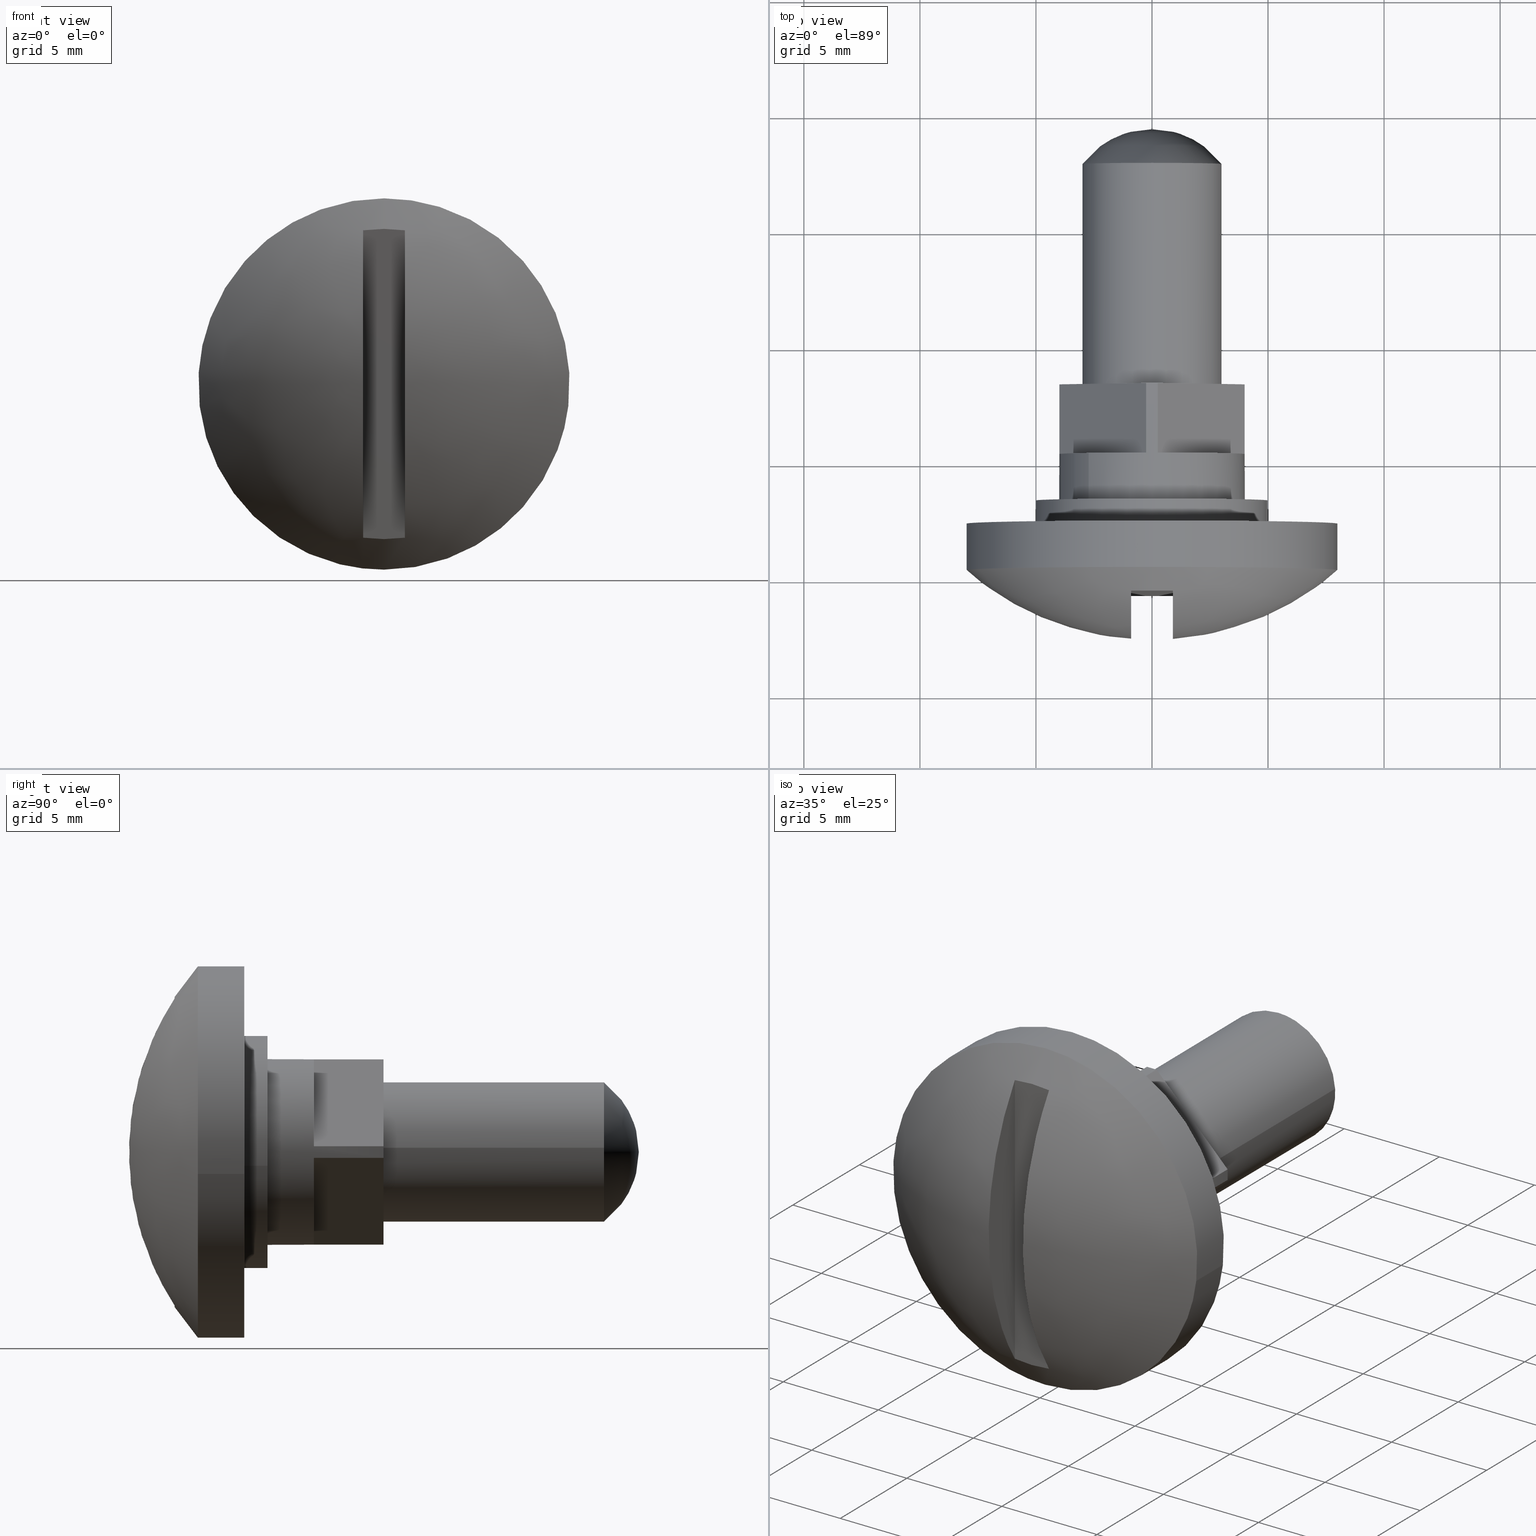
[diagram: canonical four-view strip — front | top / right | iso, engineering-drawing reading convention]
A machine part, canonical four-view strip (front | top / right | iso — engineering-drawing reading convention). The complete STEP part file that produces these views, byte-faithful:
ISO-10303-21;
HEADER;
/****************************************************************
 * Generated by software with PDE/Lib inside                    *
 * PDElib Version 4.4.1-0003, patched  Thursday August 19 11:58 *
 * International Technegroup Inc. (www.iti-oh.com)              *
 ****************************************************************/
FILE_DESCRIPTION((''),'2;1');
FILE_NAME('','2005-07-15T17:28:16',(''),(''),'','CADfix','');
FILE_SCHEMA(('AUTOMOTIVE_DESIGN'));
ENDSEC;
DATA;
#5=APPLICATION_CONTEXT('automotive design');
#6=APPLICATION_PROTOCOL_DEFINITION('Draft International Standard','automotive_design',1998,#5);
#7=PRODUCT_CONTEXT('None',#5,'mechanical');
#8=PRODUCT('knob','','None',(#7));
#9=PRODUCT_RELATED_PRODUCT_CATEGORY('part','description',(#8));
#10=PRODUCT_DEFINITION_FORMATION('None','None',#8);
#11=PRODUCT_DEFINITION_CONTEXT('part definition',#5,'design');
#12=PRODUCT_DEFINITION('None','None',#10,#11);
#18=(NAMED_UNIT(*)PLANE_ANGLE_UNIT()SI_UNIT($,.RADIAN.));
#19=DIMENSIONAL_EXPONENTS(0.0,0.0,0.0,0.0,0.0,0.0,0.0);
#20=PLANE_ANGLE_MEASURE_WITH_UNIT(PLANE_ANGLE_MEASURE(0.017453292500000),#18);
#24=(CONVERSION_BASED_UNIT('DEGREE',#20)NAMED_UNIT(#19)PLANE_ANGLE_UNIT());
#28=(NAMED_UNIT(*)SI_UNIT($,.STERADIAN.)SOLID_ANGLE_UNIT());
#32=(LENGTH_UNIT()NAMED_UNIT(*)SI_UNIT(.MILLI.,.METRE.));
#34=UNCERTAINTY_MEASURE_WITH_UNIT(LENGTH_MEASURE(0.001000000000000),#32,'DISTANCE_ACCURACY_VALUE','');
#36=(GEOMETRIC_REPRESENTATION_CONTEXT(3)GLOBAL_UNCERTAINTY_ASSIGNED_CONTEXT((#34))GLOBAL_UNIT_ASSIGNED_CONTEXT((#24,#28,#32))REPRESENTATION_CONTEXT('None','None'));
#37=AXIS2_PLACEMENT_3D('',#38,#39,#40);
#38=CARTESIAN_POINT('',(0.0,0.0,0.0));
#39=DIRECTION('',(0.0,0.0,1.0));
#40=DIRECTION('',(1.0,0.0,0.0));
#41=ADVANCED_BREP_SHAPE_REPRESENTATION('',(#37,#1353),#36);
#42=PRODUCT_DEFINITION_SHAPE('','',#12);
#43=SHAPE_DEFINITION_REPRESENTATION(#42,#41);
#44=CARTESIAN_POINT('',(-2.994404615528195,13.137516400000001,-0.183142017307440));
#45=CARTESIAN_POINT('',(-2.811262598220756,13.137516400000003,-3.177546632835635));
#46=CARTESIAN_POINT('',(0.183142017307439,13.137516400000001,-2.994404615528196));
#47=CARTESIAN_POINT('',(3.177546632835635,13.137516400000003,-2.811262598220757));
#48=CARTESIAN_POINT('',(2.994404615528195,13.137516400000001,0.183142017307438));
#49=CARTESIAN_POINT('',(-2.994404615528195,3.156562089999999,-0.183142017307440));
#50=CARTESIAN_POINT('',(-2.811262598220756,3.156562090000000,-3.177546632835635));
#51=CARTESIAN_POINT('',(0.183142017307439,3.156562090000000,-2.994404615528196));
#52=CARTESIAN_POINT('',(3.177546632835635,3.156562090000000,-2.811262598220757));
#53=CARTESIAN_POINT('',(2.994404615528195,3.156562090000000,0.183142017307438));
#61=(BOUNDED_SURFACE()B_SPLINE_SURFACE(2,1,((#44,#49),(#45,#50),(#46,#51),(#47,#52),(#48,#53)),.UNSPECIFIED.,.F.,.F.,.U.)B_SPLINE_SURFACE_WITH_KNOTS((3,2,3),(2,2),(0.0,4.970562748477139,9.941125496954278),(0.0,9.980954310000005),.UNSPECIFIED.)GEOMETRIC_REPRESENTATION_ITEM()RATIONAL_B_SPLINE_SURFACE(((1.0,1.0),(0.707106781186548,0.707106781186548),(1.0,1.0),(0.707106781186548,0.707106781186548),(1.0,1.0)))REPRESENTATION_ITEM('')SURFACE());
#62=CARTESIAN_POINT('',(-2.994404663263454,12.900015999999720,-0.183141236824116));
#63=VERTEX_POINT('',#62);
#64=CARTESIAN_POINT('',(0.0,12.900016000000001,-3.000000000000001));
#65=VERTEX_POINT('',#64);
#66=CARTESIAN_POINT('',(-2.994404663263454,12.900015999999717,-0.183141236824115));
#67=CARTESIAN_POINT('',(-2.822123075059931,12.900015999999999,-3.000000000000001));
#68=CARTESIAN_POINT('',(0.0,12.900016000000001,-3.000000000000001));
#76=(BOUNDED_CURVE()B_SPLINE_CURVE(2,(#66,#67,#68),.UNSPECIFIED.,.F.,.U.)B_SPLINE_CURVE_WITH_KNOTS((3,3),(0.760666740292436,1.0),.UNSPECIFIED.)CURVE()GEOMETRIC_REPRESENTATION_ITEM()RATIONAL_B_SPLINE_CURVE((0.976072679199428,0.719603644780542,1.0))REPRESENTATION_ITEM(''));
#77=EDGE_CURVE('',#63,#65,#76,.T.);
#78=ORIENTED_EDGE('',*,*,#77,.T.);
#79=CARTESIAN_POINT('',(2.994404663590363,12.900015999999971,0.183141231479039));
#80=VERTEX_POINT('',#79);
#81=CARTESIAN_POINT('',(0.0,12.900016000000001,-3.000000000000001));
#82=CARTESIAN_POINT('',(3.0,12.900016000000001,-3.0));
#83=CARTESIAN_POINT('',(3.0,12.900016000000001,-7.715016E-016));
#84=CARTESIAN_POINT('',(3.000000000000000,12.900016000000006,0.091655696166776));
#85=CARTESIAN_POINT('',(2.994404663590363,12.900015999999978,0.183141231479039));
#93=(BOUNDED_CURVE()B_SPLINE_CURVE(2,(#81,#82,#83,#84,#85),.UNSPECIFIED.,.F.,.U.)B_SPLINE_CURVE_WITH_KNOTS((3,2,3),(0.0,0.250000000000000,0.260666739676436),.UNSPECIFIED.)CURVE()GEOMETRIC_REPRESENTATION_ITEM()RATIONAL_B_SPLINE_CURVE((1.0,0.707106781186548,1.0,0.987503137127694,0.976072680519636))REPRESENTATION_ITEM(''));
#94=EDGE_CURVE('',#65,#80,#93,.T.);
#95=ORIENTED_EDGE('',*,*,#94,.T.);
#96=CARTESIAN_POINT('',(2.994404490119333,3.400000000000000,0.183142009639456));
#97=VERTEX_POINT('',#96);
#98=CARTESIAN_POINT('',(2.994404663590363,12.900015999999971,0.183141231479039));
#99=CARTESIAN_POINT('',(2.994404490119333,3.400000000000000,0.183142009639456));
#100=QUASI_UNIFORM_CURVE('',1,(#98,#99),.UNSPECIFIED.,.F.,.U.);
#101=EDGE_CURVE('',#80,#97,#100,.T.);
#102=ORIENTED_EDGE('',*,*,#101,.T.);
#103=CARTESIAN_POINT('',(2.121322265686895,3.400000000000000,-2.121326234312615));
#104=VERTEX_POINT('',#103);
#105=CARTESIAN_POINT('',(2.994404490119333,3.400000000000000,0.183142009639456));
#106=CARTESIAN_POINT('',(3.000000118683778,3.400000000000000,0.091654769193778));
#107=CARTESIAN_POINT('',(3.000000281437091,3.400000000000000,-0.000003424561802));
#108=CARTESIAN_POINT('',(3.000002487941428,3.400000000000000,-1.242646037817551));
#109=CARTESIAN_POINT('',(2.121322265686895,3.400000000000000,-2.121326234312615));
#117=(BOUNDED_CURVE()B_SPLINE_CURVE(2,(#105,#106,#107,#108,#109),.UNSPECIFIED.,.F.,.U.)B_SPLINE_CURVE_WITH_KNOTS((3,2,3),(0.460322121752614,0.500000000000000,1.0),.UNSPECIFIED.)CURVE()GEOMETRIC_REPRESENTATION_ITEM()RATIONAL_B_SPLINE_CURVE((0.988877489748887,0.993959387499798,1.0,0.923879340743228,1.0))REPRESENTATION_ITEM(''));
#118=EDGE_CURVE('',#97,#104,#117,.T.);
#119=ORIENTED_EDGE('',*,*,#118,.T.);
#120=CARTESIAN_POINT('',(-2.121323301251275,3.400000000000000,-2.121318198730010));
#121=VERTEX_POINT('',#120);
#122=CARTESIAN_POINT('',(2.121322265686895,3.400000000000000,-2.121326234312615));
#123=CARTESIAN_POINT('',(1.242640728038254,3.400000000000000,-3.000004510004441));
#124=CARTESIAN_POINT('',(-0.000001457129662,3.400000000000000,-3.000002156436656));
#125=CARTESIAN_POINT('',(-1.242643642297578,3.400000000000000,-2.999999802868871));
#126=CARTESIAN_POINT('',(-2.121323301251275,3.400000000000000,-2.121318198730010));
#134=(BOUNDED_CURVE()B_SPLINE_CURVE(2,(#122,#123,#124,#125,#126),.UNSPECIFIED.,.F.,.U.)B_SPLINE_CURVE_WITH_KNOTS((3,2,3),(0.0,0.500000000000000,1.0),.UNSPECIFIED.)CURVE()GEOMETRIC_REPRESENTATION_ITEM()RATIONAL_B_SPLINE_CURVE((1.0,0.923879506941981,1.0,0.923879506941981,1.0))REPRESENTATION_ITEM(''));
#135=EDGE_CURVE('',#104,#121,#134,.T.);
#136=ORIENTED_EDGE('',*,*,#135,.T.);
#137=CARTESIAN_POINT('',(-2.994403242990881,3.400000000000000,-0.183142378471797));
#138=VERTEX_POINT('',#137);
#139=CARTESIAN_POINT('',(-2.121323301251275,3.400000000000000,-2.121318198730010));
#140=CARTESIAN_POINT('',(-2.925019260653875,3.400000000000000,-1.317620866015910));
#141=CARTESIAN_POINT('',(-2.994403242990881,3.400000000000001,-0.183142378471797));
#149=(BOUNDED_CURVE()B_SPLINE_CURVE(2,(#139,#140,#141),.UNSPECIFIED.,.F.,.U.)B_SPLINE_CURVE_WITH_KNOTS((3,3),(0.0,0.463120798203553),.UNSPECIFIED.)CURVE()GEOMETRIC_REPRESENTATION_ITEM()RATIONAL_B_SPLINE_CURVE((1.0,0.864355430681329,0.854350503792338))REPRESENTATION_ITEM(''));
#150=EDGE_CURVE('',#121,#138,#149,.T.);
#151=ORIENTED_EDGE('',*,*,#150,.T.);
#152=CARTESIAN_POINT('',(-2.994404663263454,12.900015999999720,-0.183141236824116));
#153=CARTESIAN_POINT('',(-2.994403242990881,3.400000000000000,-0.183142378471797));
#154=QUASI_UNIFORM_CURVE('',1,(#152,#153),.UNSPECIFIED.,.F.,.U.);
#155=EDGE_CURVE('',#63,#138,#154,.T.);
#156=ORIENTED_EDGE('',*,*,#155,.F.);
#157=EDGE_LOOP('',(#78,#95,#102,#119,#136,#151,#156));
#158=FACE_OUTER_BOUND('',#157,.T.);
#159=ADVANCED_FACE('',(#158),#61,.T.);
#160=CARTESIAN_POINT('',(2.994404615528195,13.137516400000001,0.183142017307438));
#161=CARTESIAN_POINT('',(2.811262598220756,13.137516400000003,3.177546632835633));
#162=CARTESIAN_POINT('',(-0.183142017307439,13.137516400000001,2.994404615528194));
#163=CARTESIAN_POINT('',(-3.177546632835635,13.137516400000003,2.811262598220754));
#164=CARTESIAN_POINT('',(-2.994404615528195,13.137516400000001,-0.183142017307440));
#165=CARTESIAN_POINT('',(2.994404615528195,3.156562090000000,0.183142017307438));
#166=CARTESIAN_POINT('',(2.811262598220756,3.156562090000000,3.177546632835633));
#167=CARTESIAN_POINT('',(-0.183142017307439,3.156562090000000,2.994404615528194));
#168=CARTESIAN_POINT('',(-3.177546632835635,3.156562090000000,2.811262598220754));
#169=CARTESIAN_POINT('',(-2.994404615528195,3.156562089999999,-0.183142017307440));
#177=(BOUNDED_SURFACE()B_SPLINE_SURFACE(2,1,((#160,#165),(#161,#166),(#162,#167),(#163,#168),(#164,#169)),.UNSPECIFIED.,.F.,.F.,.U.)B_SPLINE_SURFACE_WITH_KNOTS((3,2,3),(2,2),(0.0,4.970562748477139,9.941125496954278),(0.0,9.980954310000005),.UNSPECIFIED.)GEOMETRIC_REPRESENTATION_ITEM()RATIONAL_B_SPLINE_SURFACE(((1.0,1.0),(0.707106781186548,0.707106781186548),(1.0,1.0),(0.707106781186548,0.707106781186548),(1.0,1.0)))REPRESENTATION_ITEM('')SURFACE());
#178=CARTESIAN_POINT('',(0.0,12.900016000000001,2.999999999999999));
#179=VERTEX_POINT('',#178);
#180=CARTESIAN_POINT('',(0.0,12.900016000000001,2.999999999999999));
#181=CARTESIAN_POINT('',(-3.0,12.900016000000001,2.999999999999999));
#182=CARTESIAN_POINT('',(-3.0,12.900016000000001,-7.715016E-016));
#183=CARTESIAN_POINT('',(-3.000000000000000,12.900016000000004,-0.091655701526847));
#184=CARTESIAN_POINT('',(-2.994404663263455,12.900015999999715,-0.183141236824115));
#192=(BOUNDED_CURVE()B_SPLINE_CURVE(2,(#180,#181,#182,#183,#184),.UNSPECIFIED.,.F.,.U.)B_SPLINE_CURVE_WITH_KNOTS((3,2,3),(0.500000000000000,0.750000000000000,0.760666740292437),.UNSPECIFIED.)CURVE()GEOMETRIC_REPRESENTATION_ITEM()RATIONAL_B_SPLINE_CURVE((1.0,0.707106781186548,1.0,0.987503136406004,0.976072679199426))REPRESENTATION_ITEM(''));
#193=EDGE_CURVE('',#179,#63,#192,.T.);
#194=ORIENTED_EDGE('',*,*,#193,.T.);
#195=ORIENTED_EDGE('',*,*,#155,.T.);
#196=CARTESIAN_POINT('',(-2.121315767779515,3.400000000000000,2.121311232219955));
#197=VERTEX_POINT('',#196);
#198=CARTESIAN_POINT('',(-2.994403242990881,3.400000000000001,-0.183142378471797));
#199=CARTESIAN_POINT('',(-3.076897983283088,3.400000000000000,1.165730687957038));
#200=CARTESIAN_POINT('',(-2.121315767779515,3.400000000000000,2.121311232219955));
#208=(BOUNDED_CURVE()B_SPLINE_CURVE(2,(#198,#199,#200),.UNSPECIFIED.,.F.,.U.)B_SPLINE_CURVE_WITH_KNOTS((3,3),(0.463120798203553,1.0),.UNSPECIFIED.)CURVE()GEOMETRIC_REPRESENTATION_ITEM()RATIONAL_B_SPLINE_CURVE((0.854350503792338,0.842752153679302,1.0))REPRESENTATION_ITEM(''));
#209=EDGE_CURVE('',#138,#197,#208,.T.);
#210=ORIENTED_EDGE('',*,*,#209,.T.);
#211=CARTESIAN_POINT('',(2.121314732212985,3.400000000000000,2.121319267770345));
#212=VERTEX_POINT('',#211);
#213=CARTESIAN_POINT('',(-2.121315767779515,3.400000000000000,2.121311232219955));
#214=CARTESIAN_POINT('',(-1.242639160509952,3.400000000000000,2.999992552879207));
#215=CARTESIAN_POINT('',(-0.000001457130434,3.400000000000000,2.999994906437426));
#216=CARTESIAN_POINT('',(1.242636246249084,3.400000000000000,2.999997259995644));
#217=CARTESIAN_POINT('',(2.121314732212985,3.400000000000000,2.121319267770345));
#225=(BOUNDED_CURVE()B_SPLINE_CURVE(2,(#213,#214,#215,#216,#217),.UNSPECIFIED.,.F.,.U.)B_SPLINE_CURVE_WITH_KNOTS((3,2,3),(0.0,0.500000000000000,1.0),.UNSPECIFIED.)CURVE()GEOMETRIC_REPRESENTATION_ITEM()RATIONAL_B_SPLINE_CURVE((1.0,0.923879532511069,1.0,0.923879532511069,1.0))REPRESENTATION_ITEM(''));
#226=EDGE_CURVE('',#197,#212,#225,.T.);
#227=ORIENTED_EDGE('',*,*,#226,.T.);
#228=CARTESIAN_POINT('',(2.121314732212985,3.400000000000000,2.121319267770345));
#229=CARTESIAN_POINT('',(2.925014651749199,3.400000000000000,1.317622333370854));
#230=CARTESIAN_POINT('',(2.994404490119333,3.400000000000000,0.183142009639456));
#238=(BOUNDED_CURVE()B_SPLINE_CURVE(2,(#228,#229,#230),.UNSPECIFIED.,.F.,.U.)B_SPLINE_CURVE_WITH_KNOTS((3,3),(0.0,0.460322121752614),.UNSPECIFIED.)CURVE()GEOMETRIC_REPRESENTATION_ITEM()RATIONAL_B_SPLINE_CURVE((1.0,0.929919953243430,0.988877489748887))REPRESENTATION_ITEM(''));
#239=EDGE_CURVE('',#212,#97,#238,.T.);
#240=ORIENTED_EDGE('',*,*,#239,.T.);
#241=ORIENTED_EDGE('',*,*,#101,.F.);
#242=CARTESIAN_POINT('',(2.994404663590363,12.900015999999978,0.183141231479039));
#243=CARTESIAN_POINT('',(2.822123085153854,12.900015999999999,2.999999999999998));
#244=CARTESIAN_POINT('',(0.0,12.900016000000001,2.999999999999999));
#252=(BOUNDED_CURVE()B_SPLINE_CURVE(2,(#242,#243,#244),.UNSPECIFIED.,.F.,.U.)B_SPLINE_CURVE_WITH_KNOTS((3,3),(0.260666739676436,0.500000000000000),.UNSPECIFIED.)CURVE()GEOMETRIC_REPRESENTATION_ITEM()RATIONAL_B_SPLINE_CURVE((0.976072680519636,0.719603644058854,1.0))REPRESENTATION_ITEM(''));
#253=EDGE_CURVE('',#80,#179,#252,.T.);
#254=ORIENTED_EDGE('',*,*,#253,.T.);
#255=EDGE_LOOP('',(#194,#195,#210,#227,#240,#241,#254));
#256=FACE_OUTER_BOUND('',#255,.T.);
#257=ADVANCED_FACE('',(#256),#177,.T.);
#258=CARTESIAN_POINT('',(7.944076210909330,-2.549990697272630,-0.944273877254068));
#259=CARTESIAN_POINT('',(7.971100923588844,-2.549990697272630,-0.716917829103822));
#260=CARTESIAN_POINT('',(7.985078387374934,-2.549990697272629,-0.488388316278857));
#261=CARTESIAN_POINT('',(8.473466703653790,-2.549990697272629,7.496690071096077));
#262=CARTESIAN_POINT('',(0.488388316278856,-2.549990697272629,7.985078387374933));
#263=CARTESIAN_POINT('',(-7.496690071096078,-2.549990697272629,8.473466703653788));
#264=CARTESIAN_POINT('',(-7.985078387374934,-2.549990697272629,0.488388316278855));
#265=CARTESIAN_POINT('',(7.944076210909330,-4.651253419386369,-0.944273877254068));
#266=CARTESIAN_POINT('',(7.971100923588844,-4.651253419386368,-0.716917829103822));
#267=CARTESIAN_POINT('',(7.985078387374934,-4.651253419386368,-0.488388316278857));
#268=CARTESIAN_POINT('',(8.473466703653790,-4.651253419386369,7.496690071096077));
#269=CARTESIAN_POINT('',(0.488388316278856,-4.651253419386368,7.985078387374933));
#270=CARTESIAN_POINT('',(-7.496690071096078,-4.651253419386369,8.473466703653788));
#271=CARTESIAN_POINT('',(-7.985078387374934,-4.651253419386368,0.488388316278855));
#279=(BOUNDED_SURFACE()B_SPLINE_SURFACE(2,1,((#258,#265),(#259,#266),(#260,#267),(#261,#268),(#262,#269),(#263,#270),(#264,#271)),.UNSPECIFIED.,.F.,.F.,.U.)B_SPLINE_SURFACE_WITH_KNOTS((3,2,2,3),(2,2),(0.0,0.530193359837562,13.785027355776601,27.039861351715640),(0.0,2.101262722113740),.UNSPECIFIED.)GEOMETRIC_REPRESENTATION_ITEM()RATIONAL_B_SPLINE_SURFACE(((0.977505800795127,0.977505800795127),(0.988284271247462,0.988284271247462),(1.0,1.0),(0.707106781186548,0.707106781186548),(1.0,1.0),(0.707106781186548,0.707106781186548),(1.0,1.0)))REPRESENTATION_ITEM('')SURFACE());
#280=CARTESIAN_POINT('',(7.944076345041307,-2.599990999999911,-0.944272748814582));
#281=VERTEX_POINT('',#280);
#282=CARTESIAN_POINT('',(0.0,-2.599990999999905,8.0));
#283=VERTEX_POINT('',#282);
#284=CARTESIAN_POINT('',(7.944076345041307,-2.599990999999910,-0.944272748814582));
#285=CARTESIAN_POINT('',(7.999999999999999,-2.599990999999905,-0.473792387030691));
#286=CARTESIAN_POINT('',(8.0,-2.599990999999905,-7.715016E-016));
#287=CARTESIAN_POINT('',(8.0,-2.599990999999905,8.0));
#288=CARTESIAN_POINT('',(0.0,-2.599990999999905,8.0));
#296=(BOUNDED_CURVE()B_SPLINE_CURVE(2,(#284,#285,#286,#287,#288),.UNSPECIFIED.,.F.,.U.)B_SPLINE_CURVE_WITH_KNOTS((3,2,3),(0.229562497522204,0.250000000000000,0.500000000000000),.UNSPECIFIED.)CURVE()GEOMETRIC_REPRESENTATION_ITEM()RATIONAL_B_SPLINE_CURVE((0.956026801241731,0.976055976459082,1.0,0.707106781186548,1.0))REPRESENTATION_ITEM(''));
#297=EDGE_CURVE('',#281,#283,#296,.T.);
#298=ORIENTED_EDGE('',*,*,#297,.T.);
#299=CARTESIAN_POINT('',(-7.985078491738044,-2.599990999999895,0.488386609951132));
#300=VERTEX_POINT('',#299);
#301=CARTESIAN_POINT('',(0.0,-2.599990999999905,8.0));
#302=CARTESIAN_POINT('',(-7.525650146403201,-2.599990999999905,8.0));
#303=CARTESIAN_POINT('',(-7.985078491738044,-2.599990999999895,0.488386609951132));
#311=(BOUNDED_CURVE()B_SPLINE_CURVE(2,(#301,#302,#303),.UNSPECIFIED.,.F.,.U.)B_SPLINE_CURVE_WITH_KNOTS((3,3),(0.500000000000000,0.739332999113413),.UNSPECIFIED.)CURVE()GEOMETRIC_REPRESENTATION_ITEM()RATIONAL_B_SPLINE_CURVE((1.0,0.719603950085581,0.976072120695740))REPRESENTATION_ITEM(''));
#312=EDGE_CURVE('',#283,#300,#311,.T.);
#313=ORIENTED_EDGE('',*,*,#312,.T.);
#314=CARTESIAN_POINT('',(-7.985078490479376,-4.600003109090910,0.488386630530298));
#315=VERTEX_POINT('',#314);
#316=CARTESIAN_POINT('',(-7.985078491738044,-2.599990999999895,0.488386609951132));
#317=CARTESIAN_POINT('',(-7.985078490479376,-4.600003109090910,0.488386630530298));
#318=QUASI_UNIFORM_CURVE('',1,(#316,#317),.UNSPECIFIED.,.F.,.U.);
#319=EDGE_CURVE('',#300,#315,#318,.T.);
#320=ORIENTED_EDGE('',*,*,#319,.T.);
#321=CARTESIAN_POINT('',(0.0,-4.600003109090910,8.0));
#322=VERTEX_POINT('',#321);
#323=CARTESIAN_POINT('',(0.0,-4.600003109090910,8.0));
#324=CARTESIAN_POINT('',(-7.525650126971833,-4.600003109090910,8.0));
#325=CARTESIAN_POINT('',(-7.985078490479377,-4.600003109090910,0.488386630530298));
#333=(BOUNDED_CURVE()B_SPLINE_CURVE(2,(#323,#324,#325),.UNSPECIFIED.,.F.,.U.)B_SPLINE_CURVE_WITH_KNOTS((3,3),(0.500000000000000,0.739332998668725),.UNSPECIFIED.)CURVE()GEOMETRIC_REPRESENTATION_ITEM()RATIONAL_B_SPLINE_CURVE((1.0,0.719603950606565,0.976072119742688))REPRESENTATION_ITEM(''));
#334=EDGE_CURVE('',#322,#315,#333,.T.);
#335=ORIENTED_EDGE('',*,*,#334,.F.);
#336=CARTESIAN_POINT('',(7.944076343426870,-4.600003109090911,-0.944272762396703));
#337=VERTEX_POINT('',#336);
#338=CARTESIAN_POINT('',(7.944076343426870,-4.600003109090911,-0.944272762396703));
#339=CARTESIAN_POINT('',(8.0,-4.600003109090910,-0.473792393893546));
#340=CARTESIAN_POINT('',(8.0,-4.600003109090910,-7.715016E-016));
#341=CARTESIAN_POINT('',(8.0,-4.600003109090911,8.0));
#342=CARTESIAN_POINT('',(0.0,-4.600003109090910,8.0));
#350=(BOUNDED_CURVE()B_SPLINE_CURVE(2,(#338,#339,#340,#341,#342),.UNSPECIFIED.,.F.,.U.)B_SPLINE_CURVE_WITH_KNOTS((3,2,3),(0.229562497233257,0.250000000000000,0.500000000000000),.UNSPECIFIED.)CURVE()GEOMETRIC_REPRESENTATION_ITEM()RATIONAL_B_SPLINE_CURVE((0.956026800675382,0.976055976120559,1.0,0.707106781186548,1.0))REPRESENTATION_ITEM(''));
#351=EDGE_CURVE('',#337,#322,#350,.T.);
#352=ORIENTED_EDGE('',*,*,#351,.F.);
#353=CARTESIAN_POINT('',(7.944076345041307,-2.599990999999911,-0.944272748814582));
#354=CARTESIAN_POINT('',(7.944076343426870,-4.600003109090911,-0.944272762396703));
#355=QUASI_UNIFORM_CURVE('',1,(#353,#354),.UNSPECIFIED.,.F.,.U.);
#356=EDGE_CURVE('',#281,#337,#355,.T.);
#357=ORIENTED_EDGE('',*,*,#356,.F.);
#358=EDGE_LOOP('',(#298,#313,#320,#335,#352,#357));
#359=FACE_OUTER_BOUND('',#358,.T.);
#360=ADVANCED_FACE('',(#359),#279,.T.);
#361=CARTESIAN_POINT('',(-7.985078387374934,-2.549990697272629,0.488388316278855));
#362=CARTESIAN_POINT('',(-8.473466703653790,-2.549990697272629,-7.496690071096078));
#363=CARTESIAN_POINT('',(-0.488388316278856,-2.549990697272629,-7.985078387374935));
#364=CARTESIAN_POINT('',(7.052347926716008,-2.549990697272630,-8.446289573860220));
#365=CARTESIAN_POINT('',(7.944076210909330,-2.549990697272630,-0.944273877254068));
#366=CARTESIAN_POINT('',(-7.985078387374934,-4.651253419386368,0.488388316278855));
#367=CARTESIAN_POINT('',(-8.473466703653790,-4.651253419386369,-7.496690071096078));
#368=CARTESIAN_POINT('',(-0.488388316278856,-4.651253419386368,-7.985078387374935));
#369=CARTESIAN_POINT('',(7.052347926716008,-4.651253419386368,-8.446289573860220));
#370=CARTESIAN_POINT('',(7.944076210909330,-4.651253419386369,-0.944273877254068));
#378=(BOUNDED_SURFACE()B_SPLINE_SURFACE(2,1,((#361,#366),(#362,#367),(#363,#368),(#364,#369),(#365,#370)),.UNSPECIFIED.,.F.,.F.,.U.)B_SPLINE_SURFACE_WITH_KNOTS((3,2,3),(2,2),(0.0,13.254833995939039,25.979474632040510),(0.0,2.101262722113740),.UNSPECIFIED.)GEOMETRIC_REPRESENTATION_ITEM()RATIONAL_B_SPLINE_SURFACE(((1.0,1.0),(0.707106781186548,0.707106781186548),(1.0,1.0),(0.718822509939086,0.718822509939086),(0.977505800795127,0.977505800795127)))REPRESENTATION_ITEM('')SURFACE());
#379=CARTESIAN_POINT('',(0.0,-2.599990999999905,-8.0));
#380=VERTEX_POINT('',#379);
#381=CARTESIAN_POINT('',(0.0,-2.599990999999905,-8.0));
#382=CARTESIAN_POINT('',(7.105397224022927,-2.599990999999906,-8.0));
#383=CARTESIAN_POINT('',(7.944076345041307,-2.599990999999910,-0.944272748814582));
#391=(BOUNDED_CURVE()B_SPLINE_CURVE(2,(#381,#382,#383),.UNSPECIFIED.,.F.,.U.)B_SPLINE_CURVE_WITH_KNOTS((3,3),(0.0,0.229562497522204),.UNSPECIFIED.)CURVE()GEOMETRIC_REPRESENTATION_ITEM()RATIONAL_B_SPLINE_CURVE((1.0,0.731050804727466,0.956026801241731))REPRESENTATION_ITEM(''));
#392=EDGE_CURVE('',#380,#281,#391,.T.);
#393=ORIENTED_EDGE('',*,*,#392,.T.);
#394=ORIENTED_EDGE('',*,*,#356,.T.);
#395=CARTESIAN_POINT('',(0.0,-4.600003109090910,-8.0));
#396=VERTEX_POINT('',#395);
#397=CARTESIAN_POINT('',(0.0,-4.600003109090910,-8.0));
#398=CARTESIAN_POINT('',(7.105397211789190,-4.600003109090910,-8.0));
#399=CARTESIAN_POINT('',(7.944076343426870,-4.600003109090911,-0.944272762396703));
#407=(BOUNDED_CURVE()B_SPLINE_CURVE(2,(#397,#398,#399),.UNSPECIFIED.,.F.,.U.)B_SPLINE_CURVE_WITH_KNOTS((3,3),(0.0,0.229562497233257),.UNSPECIFIED.)CURVE()GEOMETRIC_REPRESENTATION_ITEM()RATIONAL_B_SPLINE_CURVE((1.0,0.731050805065989,0.956026800675382))REPRESENTATION_ITEM(''));
#408=EDGE_CURVE('',#396,#337,#407,.T.);
#409=ORIENTED_EDGE('',*,*,#408,.F.);
#410=CARTESIAN_POINT('',(-7.985078490479377,-4.600003109090910,0.488386630530298));
#411=CARTESIAN_POINT('',(-8.0,-4.600003109090910,0.244421261151109));
#412=CARTESIAN_POINT('',(-8.0,-4.600003109090910,-7.715016E-016));
#413=CARTESIAN_POINT('',(-8.0,-4.600003109090911,-8.0));
#414=CARTESIAN_POINT('',(0.0,-4.600003109090910,-8.0));
#422=(BOUNDED_CURVE()B_SPLINE_CURVE(2,(#410,#411,#412,#413,#414),.UNSPECIFIED.,.F.,.U.)B_SPLINE_CURVE_WITH_KNOTS((3,2,3),(0.739332998668725,0.750000000000000,1.0),.UNSPECIFIED.)CURVE()GEOMETRIC_REPRESENTATION_ITEM()RATIONAL_B_SPLINE_CURVE((0.976072119742688,0.987502830579982,1.0,0.707106781186548,1.0))REPRESENTATION_ITEM(''));
#423=EDGE_CURVE('',#315,#396,#422,.T.);
#424=ORIENTED_EDGE('',*,*,#423,.F.);
#425=ORIENTED_EDGE('',*,*,#319,.F.);
#426=CARTESIAN_POINT('',(-7.985078491738044,-2.599990999999895,0.488386609951132));
#427=CARTESIAN_POINT('',(-8.0,-2.599990999999905,0.244421250832675));
#428=CARTESIAN_POINT('',(-8.0,-2.599990999999905,-7.715016E-016));
#429=CARTESIAN_POINT('',(-8.0,-2.599990999999905,-8.0));
#430=CARTESIAN_POINT('',(0.0,-2.599990999999905,-8.0));
#438=(BOUNDED_CURVE()B_SPLINE_CURVE(2,(#426,#427,#428,#429,#430),.UNSPECIFIED.,.F.,.U.)B_SPLINE_CURVE_WITH_KNOTS((3,2,3),(0.739332999113413,0.750000000000000,1.0),.UNSPECIFIED.)CURVE()GEOMETRIC_REPRESENTATION_ITEM()RATIONAL_B_SPLINE_CURVE((0.976072120695740,0.987502831100967,1.0,0.707106781186548,1.0))REPRESENTATION_ITEM(''));
#439=EDGE_CURVE('',#300,#380,#438,.T.);
#440=ORIENTED_EDGE('',*,*,#439,.T.);
#441=EDGE_LOOP('',(#393,#394,#409,#424,#425,#440));
#442=FACE_OUTER_BOUND('',#441,.T.);
#443=ADVANCED_FACE('',(#442),#378,.T.);
#444=CARTESIAN_POINT('',(4.965047631818332,-1.574990999999905,-0.590171173283793));
#445=CARTESIAN_POINT('',(4.981938077243028,-1.574990999999905,-0.448073643189889));
#446=CARTESIAN_POINT('',(4.990673992109334,-1.574990999999905,-0.305242697674286));
#447=CARTESIAN_POINT('',(5.295916689783620,-1.574990999999905,4.685431294435048));
#448=CARTESIAN_POINT('',(0.305242697674285,-1.574990999999905,4.990673992109333));
#449=CARTESIAN_POINT('',(-4.685431294435048,-1.574990999999905,5.295916689783618));
#450=CARTESIAN_POINT('',(-4.990673992109334,-1.574990999999905,0.305242697674284));
#451=CARTESIAN_POINT('',(4.965047631818332,-2.625615999999905,-0.590171173283793));
#452=CARTESIAN_POINT('',(4.981938077243028,-2.625615999999905,-0.448073643189889));
#453=CARTESIAN_POINT('',(4.990673992109334,-2.625615999999905,-0.305242697674286));
#454=CARTESIAN_POINT('',(5.295916689783620,-2.625615999999905,4.685431294435048));
#455=CARTESIAN_POINT('',(0.305242697674285,-2.625615999999905,4.990673992109333));
#456=CARTESIAN_POINT('',(-4.685431294435048,-2.625615999999905,5.295916689783618));
#457=CARTESIAN_POINT('',(-4.990673992109334,-2.625615999999905,0.305242697674284));
#465=(BOUNDED_SURFACE()B_SPLINE_SURFACE(2,1,((#444,#451),(#445,#452),(#446,#453),(#447,#454),(#448,#455),(#449,#456),(#450,#457)),.UNSPECIFIED.,.F.,.F.,.U.)B_SPLINE_SURFACE_WITH_KNOTS((3,2,2,3),(2,2),(0.0,0.331370849898476,8.615642097360375,16.899913344822270),(0.0,1.0),.UNSPECIFIED.)GEOMETRIC_REPRESENTATION_ITEM()RATIONAL_B_SPLINE_SURFACE(((0.977505800795127,0.977505800795127),(0.988284271247462,0.988284271247462),(1.0,1.0),(0.707106781186548,0.707106781186548),(1.0,1.0),(0.707106781186548,0.707106781186548),(1.0,1.0)))REPRESENTATION_ITEM('')SURFACE());
#466=CARTESIAN_POINT('',(4.965047645764781,-2.599990999999905,-0.590171055953764));
#467=VERTEX_POINT('',#466);
#468=CARTESIAN_POINT('',(0.0,-2.599990999999905,4.999999999999999));
#469=VERTEX_POINT('',#468);
#470=CARTESIAN_POINT('',(4.965047645764781,-2.599990999999905,-0.590171055953764));
#471=CARTESIAN_POINT('',(5.0,-2.599990999999905,-0.296120479689125));
#472=CARTESIAN_POINT('',(5.0,-2.599990999999905,-7.715016E-016));
#473=CARTESIAN_POINT('',(5.000000000000001,-2.599990999999905,4.999999999999998));
#474=CARTESIAN_POINT('',(0.0,-2.599990999999905,4.999999999999999));
#482=(BOUNDED_CURVE()B_SPLINE_CURVE(2,(#470,#471,#472,#473,#474),.UNSPECIFIED.,.F.,.U.)B_SPLINE_CURVE_WITH_KNOTS((3,2,3),(0.229562481503143,0.250000000000000,0.500000000000000),.UNSPECIFIED.)CURVE()GEOMETRIC_REPRESENTATION_ITEM()RATIONAL_B_SPLINE_CURVE((0.956026769843711,0.976055957691584,1.0,0.707106781186548,1.0))REPRESENTATION_ITEM(''));
#483=EDGE_CURVE('',#467,#469,#482,.T.);
#484=ORIENTED_EDGE('',*,*,#483,.F.);
#485=CARTESIAN_POINT('',(4.965047645592941,-1.599990999999905,-0.590171057399431));
#486=VERTEX_POINT('',#485);
#487=CARTESIAN_POINT('',(4.965047645592941,-1.599990999999905,-0.590171057399431));
#488=CARTESIAN_POINT('',(4.965047645764781,-2.599990999999905,-0.590171055953764));
#489=QUASI_UNIFORM_CURVE('',1,(#487,#488),.UNSPECIFIED.,.F.,.U.);
#490=EDGE_CURVE('',#486,#467,#489,.T.);
#491=ORIENTED_EDGE('',*,*,#490,.F.);
#492=CARTESIAN_POINT('',(0.0,-1.599990999999905,4.999999999999999));
#493=VERTEX_POINT('',#492);
#494=CARTESIAN_POINT('',(4.965047645592941,-1.599990999999906,-0.590171057399431));
#495=CARTESIAN_POINT('',(5.0,-1.599990999999905,-0.296120481150075));
#496=CARTESIAN_POINT('',(5.0,-1.599990999999905,-7.715016E-016));
#497=CARTESIAN_POINT('',(5.000000000000001,-1.599990999999905,4.999999999999998));
#498=CARTESIAN_POINT('',(0.0,-1.599990999999905,4.999999999999999));
#506=(BOUNDED_CURVE()B_SPLINE_CURVE(2,(#494,#495,#496,#497,#498),.UNSPECIFIED.,.F.,.U.)B_SPLINE_CURVE_WITH_KNOTS((3,2,3),(0.229562481404726,0.250000000000000,0.500000000000000),.UNSPECIFIED.)CURVE()GEOMETRIC_REPRESENTATION_ITEM()RATIONAL_B_SPLINE_CURVE((0.956026769650810,0.976055957576282,1.0,0.707106781186548,1.0))REPRESENTATION_ITEM(''));
#507=EDGE_CURVE('',#486,#493,#506,.T.);
#508=ORIENTED_EDGE('',*,*,#507,.T.);
#509=CARTESIAN_POINT('',(-4.990674244921726,-1.599990999999905,0.305238564172029));
#510=VERTEX_POINT('',#509);
#511=CARTESIAN_POINT('',(0.0,-1.599990999999905,4.999999999999999));
#512=CARTESIAN_POINT('',(-4.703534237486468,-1.599990999999905,4.999999999999999));
#513=CARTESIAN_POINT('',(-4.990674244921727,-1.599990999999905,0.305238564172029));
#521=(BOUNDED_CURVE()B_SPLINE_CURVE(2,(#511,#512,#513),.UNSPECIFIED.,.F.,.U.)B_SPLINE_CURVE_WITH_KNOTS((3,3),(0.500000000000000,0.739333105153050),.UNSPECIFIED.)CURVE()GEOMETRIC_REPRESENTATION_ITEM()RATIONAL_B_SPLINE_CURVE((1.0,0.719603825852418,0.976072347959046))REPRESENTATION_ITEM(''));
#522=EDGE_CURVE('',#493,#510,#521,.T.);
#523=ORIENTED_EDGE('',*,*,#522,.T.);
#524=CARTESIAN_POINT('',(-4.990674248083044,-2.599991000000020,0.305238512483522));
#525=VERTEX_POINT('',#524);
#526=CARTESIAN_POINT('',(-4.990674244921726,-1.599990999999905,0.305238564172029));
#527=CARTESIAN_POINT('',(-4.990674248083044,-2.599991000000020,0.305238512483522));
#528=QUASI_UNIFORM_CURVE('',1,(#526,#527),.UNSPECIFIED.,.F.,.U.);
#529=EDGE_CURVE('',#510,#525,#528,.T.);
#530=ORIENTED_EDGE('',*,*,#529,.T.);
#531=CARTESIAN_POINT('',(0.0,-2.599990999999905,4.999999999999999));
#532=CARTESIAN_POINT('',(-4.703534286292088,-2.599990999999905,4.999999999999999));
#533=CARTESIAN_POINT('',(-4.990674248083044,-2.599991000000019,0.305238512483522));
#541=(BOUNDED_CURVE()B_SPLINE_CURVE(2,(#531,#532,#533),.UNSPECIFIED.,.F.,.U.)B_SPLINE_CURVE_WITH_KNOTS((3,3),(0.500000000000000,0.739333106940121),.UNSPECIFIED.)CURVE()GEOMETRIC_REPRESENTATION_ITEM()RATIONAL_B_SPLINE_CURVE((1.0,0.719603823758735,0.976072351789084))REPRESENTATION_ITEM(''));
#542=EDGE_CURVE('',#469,#525,#541,.T.);
#543=ORIENTED_EDGE('',*,*,#542,.F.);
#544=EDGE_LOOP('',(#484,#491,#508,#523,#530,#543));
#545=FACE_OUTER_BOUND('',#544,.T.);
#546=ADVANCED_FACE('',(#545),#465,.T.);
#547=CARTESIAN_POINT('',(-4.990673992109334,-1.574990999999905,0.305242697674284));
#548=CARTESIAN_POINT('',(-5.295916689783620,-1.574990999999905,-4.685431294435050));
#549=CARTESIAN_POINT('',(-0.305242697674285,-1.574990999999905,-4.990673992109334));
#550=CARTESIAN_POINT('',(4.407717454197504,-1.574990999999905,-5.278930983662638));
#551=CARTESIAN_POINT('',(4.965047631818332,-1.574990999999905,-0.590171173283793));
#552=CARTESIAN_POINT('',(-4.990673992109334,-2.625615999999905,0.305242697674284));
#553=CARTESIAN_POINT('',(-5.295916689783620,-2.625615999999905,-4.685431294435050));
#554=CARTESIAN_POINT('',(-0.305242697674285,-2.625615999999905,-4.990673992109334));
#555=CARTESIAN_POINT('',(4.407717454197504,-2.625615999999905,-5.278930983662638));
#556=CARTESIAN_POINT('',(4.965047631818332,-2.625615999999905,-0.590171173283793));
#564=(BOUNDED_SURFACE()B_SPLINE_SURFACE(2,1,((#547,#552),(#548,#553),(#549,#554),(#550,#555),(#551,#556)),.UNSPECIFIED.,.F.,.F.,.U.)B_SPLINE_SURFACE_WITH_KNOTS((3,2,3),(2,2),(0.0,8.284271247461899,16.237171645025320),(0.0,1.0),.UNSPECIFIED.)GEOMETRIC_REPRESENTATION_ITEM()RATIONAL_B_SPLINE_SURFACE(((1.0,1.0),(0.707106781186548,0.707106781186548),(1.0,1.0),(0.718822509939086,0.718822509939086),(0.977505800795127,0.977505800795127)))REPRESENTATION_ITEM('')SURFACE());
#565=CARTESIAN_POINT('',(0.0,-2.599990999999905,-5.000000000000001));
#566=VERTEX_POINT('',#565);
#567=CARTESIAN_POINT('',(0.0,-2.599990999999905,-5.000000000000001));
#568=CARTESIAN_POINT('',(4.440872841120668,-2.599990999999905,-5.0));
#569=CARTESIAN_POINT('',(4.965047645764781,-2.599990999999905,-0.590171055953764));
#577=(BOUNDED_CURVE()B_SPLINE_CURVE(2,(#567,#568,#569),.UNSPECIFIED.,.F.,.U.)B_SPLINE_CURVE_WITH_KNOTS((3,3),(0.0,0.229562481503143),.UNSPECIFIED.)CURVE()GEOMETRIC_REPRESENTATION_ITEM()RATIONAL_B_SPLINE_CURVE((1.0,0.731050823494963,0.956026769843711))REPRESENTATION_ITEM(''));
#578=EDGE_CURVE('',#566,#467,#577,.T.);
#579=ORIENTED_EDGE('',*,*,#578,.F.);
#580=CARTESIAN_POINT('',(-4.990674248083044,-2.599991000000019,0.305238512483522));
#581=CARTESIAN_POINT('',(-5.0,-2.599990999999904,0.152761718030264));
#582=CARTESIAN_POINT('',(-5.0,-2.599990999999905,-7.715016E-016));
#583=CARTESIAN_POINT('',(-5.000000000000001,-2.599990999999905,-5.000000000000002));
#584=CARTESIAN_POINT('',(0.0,-2.599990999999905,-5.000000000000001));
#592=(BOUNDED_CURVE()B_SPLINE_CURVE(2,(#580,#581,#582,#583,#584),.UNSPECIFIED.,.F.,.U.)B_SPLINE_CURVE_WITH_KNOTS((3,2,3),(0.739333106940121,0.750000000000000,1.0),.UNSPECIFIED.)CURVE()GEOMETRIC_REPRESENTATION_ITEM()RATIONAL_B_SPLINE_CURVE((0.976072351789084,0.987502957427813,1.0,0.707106781186548,1.0))REPRESENTATION_ITEM(''));
#593=EDGE_CURVE('',#525,#566,#592,.T.);
#594=ORIENTED_EDGE('',*,*,#593,.F.);
#595=ORIENTED_EDGE('',*,*,#529,.F.);
#596=CARTESIAN_POINT('',(0.0,-1.599990999999905,-5.000000000000001));
#597=VERTEX_POINT('',#596);
#598=CARTESIAN_POINT('',(-4.990674244921727,-1.599990999999905,0.305238564172029));
#599=CARTESIAN_POINT('',(-5.0,-1.599990999999905,0.152761743946979));
#600=CARTESIAN_POINT('',(-5.0,-1.599990999999905,-7.715016E-016));
#601=CARTESIAN_POINT('',(-5.000000000000001,-1.599990999999905,-5.000000000000002));
#602=CARTESIAN_POINT('',(0.0,-1.599990999999905,-5.000000000000001));
#610=(BOUNDED_CURVE()B_SPLINE_CURVE(2,(#598,#599,#600,#601,#602),.UNSPECIFIED.,.F.,.U.)B_SPLINE_CURVE_WITH_KNOTS((3,2,3),(0.739333105153050,0.750000000000000,1.0),.UNSPECIFIED.)CURVE()GEOMETRIC_REPRESENTATION_ITEM()RATIONAL_B_SPLINE_CURVE((0.976072347959046,0.987502955334129,1.0,0.707106781186548,1.0))REPRESENTATION_ITEM(''));
#611=EDGE_CURVE('',#510,#597,#610,.T.);
#612=ORIENTED_EDGE('',*,*,#611,.T.);
#613=CARTESIAN_POINT('',(0.0,-1.599990999999905,-5.000000000000001));
#614=CARTESIAN_POINT('',(4.440872838516377,-1.599990999999905,-5.000000000000001));
#615=CARTESIAN_POINT('',(4.965047645592941,-1.599990999999906,-0.590171057399431));
#623=(BOUNDED_CURVE()B_SPLINE_CURVE(2,(#613,#614,#615),.UNSPECIFIED.,.F.,.U.)B_SPLINE_CURVE_WITH_KNOTS((3,3),(0.0,0.229562481404726),.UNSPECIFIED.)CURVE()GEOMETRIC_REPRESENTATION_ITEM()RATIONAL_B_SPLINE_CURVE((1.0,0.731050823610266,0.956026769650810))REPRESENTATION_ITEM(''));
#624=EDGE_CURVE('',#597,#486,#623,.T.);
#625=ORIENTED_EDGE('',*,*,#624,.T.);
#626=ORIENTED_EDGE('',*,*,#490,.T.);
#627=EDGE_LOOP('',(#579,#594,#595,#612,#625,#626));
#628=FACE_OUTER_BOUND('',#627,.T.);
#629=ADVANCED_FACE('',(#628),#564,.T.);
#630=CARTESIAN_POINT('',(-3.921343658264847,3.524999774999998,0.789343976847903));
#631=CARTESIAN_POINT('',(-4.327633705281061,3.524999774999997,-1.229044642072476));
#632=CARTESIAN_POINT('',(-2.921115129077192,3.524999774999998,-2.732597007002009));
#633=CARTESIAN_POINT('',(-0.188518122075183,3.524999774999998,-5.653712136079200));
#634=CARTESIAN_POINT('',(2.732597007002008,3.524999774999998,-2.921115129077192));
#635=CARTESIAN_POINT('',(5.653712136079200,3.524999774999998,-0.188518122075184));
#636=CARTESIAN_POINT('',(2.921115129077192,3.524999774999998,2.732597007002007));
#637=CARTESIAN_POINT('',(0.188518122075183,3.524999774999998,5.653712136079198));
#638=CARTESIAN_POINT('',(-2.732597007002008,3.524999774999998,2.921115129077191));
#639=CARTESIAN_POINT('',(-3.921343658264847,-1.728115769374904,0.789343976847903));
#640=CARTESIAN_POINT('',(-4.327633705281061,-1.728115769374904,-1.229044642072476));
#641=CARTESIAN_POINT('',(-2.921115129077192,-1.728115769374904,-2.732597007002009));
#642=CARTESIAN_POINT('',(-0.188518122075183,-1.728115769374903,-5.653712136079200));
#643=CARTESIAN_POINT('',(2.732597007002008,-1.728115769374904,-2.921115129077192));
#644=CARTESIAN_POINT('',(5.653712136079200,-1.728115769374903,-0.188518122075184));
#645=CARTESIAN_POINT('',(2.921115129077192,-1.728115769374904,2.732597007002007));
#646=CARTESIAN_POINT('',(0.188518122075183,-1.728115769374903,5.653712136079198));
#647=CARTESIAN_POINT('',(-2.732597007002008,-1.728115769374904,2.921115129077191));
#655=(BOUNDED_SURFACE()B_SPLINE_SURFACE(2,1,((#630,#639),(#631,#640),(#632,#641),(#633,#642),(#634,#643),(#635,#644),(#636,#645),(#637,#646),(#638,#647)),.UNSPECIFIED.,.F.,.F.,.U.)B_SPLINE_SURFACE_WITH_KNOTS((3,2,2,2,3),(2,2),(0.0,3.976450198781711,10.603867196751230,17.231284194720750,23.858701192690269),(0.0,5.253115544374902),.UNSPECIFIED.)GEOMETRIC_REPRESENTATION_ITEM()RATIONAL_B_SPLINE_SURFACE(((0.859411254969543,0.859411254969543),(0.824264068711928,0.824264068711928),(1.0,1.0),(0.707106781186548,0.707106781186548),(1.0,1.0),(0.707106781186548,0.707106781186548),(1.0,1.0),(0.707106781186548,0.707106781186548),(1.0,1.0)))REPRESENTATION_ITEM('')SURFACE());
#656=CARTESIAN_POINT('',(-3.921343658263245,-1.599990999999906,0.789343976855862));
#657=VERTEX_POINT('',#656);
#658=CARTESIAN_POINT('',(0.0,-1.599990999999905,-4.000000000000001));
#659=VERTEX_POINT('',#658);
#660=CARTESIAN_POINT('',(-3.921343658263246,-1.599990999999906,0.789343976855862));
#661=CARTESIAN_POINT('',(-4.0,-1.599990999999906,0.398590951695710));
#662=CARTESIAN_POINT('',(-4.0,-1.599990999999905,-7.715016E-016));
#663=CARTESIAN_POINT('',(-4.000000000000000,-1.599990999999905,-4.000000000000001));
#664=CARTESIAN_POINT('',(0.0,-1.599990999999905,-4.000000000000001));
#672=(BOUNDED_CURVE()B_SPLINE_CURVE(2,(#660,#661,#662,#663,#664),.UNSPECIFIED.,.F.,.U.)B_SPLINE_CURVE_WITH_KNOTS((3,2,3),(0.716165728968472,0.750000000000000,1.0),.UNSPECIFIED.)CURVE()GEOMETRIC_REPRESENTATION_ITEM()RATIONAL_B_SPLINE_CURVE((0.931450710010644,0.960360685805476,1.0,0.707106781186548,1.0))REPRESENTATION_ITEM(''));
#673=EDGE_CURVE('',#657,#659,#672,.T.);
#674=ORIENTED_EDGE('',*,*,#673,.F.);
#675=CARTESIAN_POINT('',(-3.921340227608133,0.400000000000067,0.789343287762290));
#676=VERTEX_POINT('',#675);
#677=CARTESIAN_POINT('',(-3.921340227608133,0.400000000000067,0.789343287762290));
#678=CARTESIAN_POINT('',(-3.921343658263245,-1.599990999999906,0.789343976855862));
#679=QUASI_UNIFORM_CURVE('',1,(#677,#678),.UNSPECIFIED.,.F.,.U.);
#680=EDGE_CURVE('',#676,#657,#679,.T.);
#681=ORIENTED_EDGE('',*,*,#680,.F.);
#682=CARTESIAN_POINT('',(-3.992142000000000,0.400000000000067,0.250481000000000));
#683=VERTEX_POINT('',#682);
#684=CARTESIAN_POINT('',(-3.921340227608133,0.400000000000067,0.789343287762290));
#685=CARTESIAN_POINT('',(-3.975087721357063,0.400000000000067,0.522322869465263));
#686=CARTESIAN_POINT('',(-3.992142000000000,0.400000000000067,0.250481000000000));
#694=(BOUNDED_CURVE()B_SPLINE_CURVE(2,(#684,#685,#686),.UNSPECIFIED.,.F.,.U.)B_SPLINE_CURVE_WITH_KNOTS((3,3),(0.899634941109882,1.0),.UNSPECIFIED.)CURVE()GEOMETRIC_REPRESENTATION_ITEM()RATIONAL_B_SPLINE_CURVE((0.954853736334627,0.974908564795363,1.0))REPRESENTATION_ITEM(''));
#695=EDGE_CURVE('',#676,#683,#694,.T.);
#696=ORIENTED_EDGE('',*,*,#695,.T.);
#697=CARTESIAN_POINT('',(-3.992142000000000,3.399999999999960,0.250481000000000));
#698=VERTEX_POINT('',#697);
#699=CARTESIAN_POINT('',(-3.992142000000000,3.399999999999960,0.250481000000000));
#700=CARTESIAN_POINT('',(-3.992142000000000,0.400000000000067,0.250481000000000));
#701=QUASI_UNIFORM_CURVE('',1,(#699,#700),.UNSPECIFIED.,.F.,.U.);
#702=EDGE_CURVE('',#698,#683,#701,.T.);
#703=ORIENTED_EDGE('',*,*,#702,.F.);
#704=CARTESIAN_POINT('',(-3.992149283786215,3.399999999999960,-0.250487716196264));
#705=VERTEX_POINT('',#704);
#706=CARTESIAN_POINT('',(-3.992142000000000,3.399999999999960,0.250481000000000));
#707=CARTESIAN_POINT('',(-4.007862121097584,3.399999999999960,-0.000003370370547));
#708=CARTESIAN_POINT('',(-3.992149283786215,3.399999999999960,-0.250487716196264));
#716=(BOUNDED_CURVE()B_SPLINE_CURVE(2,(#706,#707,#708),.UNSPECIFIED.,.F.,.U.)CURVE()GEOMETRIC_REPRESENTATION_ITEM()QUASI_UNIFORM_CURVE()RATIONAL_B_SPLINE_CURVE((1.0,0.998037369845379,1.0))REPRESENTATION_ITEM(''));
#717=EDGE_CURVE('',#698,#705,#716,.T.);
#718=ORIENTED_EDGE('',*,*,#717,.T.);
#719=CARTESIAN_POINT('',(-3.992149283786215,0.400000000000067,-0.250487716196264));
#720=VERTEX_POINT('',#719);
#721=CARTESIAN_POINT('',(-3.992149283786215,3.399999999999960,-0.250487716196264));
#722=CARTESIAN_POINT('',(-3.992149283786215,0.400000000000067,-0.250487716196264));
#723=QUASI_UNIFORM_CURVE('',1,(#721,#722),.UNSPECIFIED.,.F.,.U.);
#724=EDGE_CURVE('',#705,#720,#723,.T.);
#725=ORIENTED_EDGE('',*,*,#724,.T.);
#726=CARTESIAN_POINT('',(-0.250497318716338,0.400000000000067,-3.992148681263755));
#727=VERTEX_POINT('',#726);
#728=CARTESIAN_POINT('',(-3.992149283786215,0.400000000000067,-0.250487716196264));
#729=CARTESIAN_POINT('',(-3.771239979351664,0.400000000000020,-3.771230908206215));
#730=CARTESIAN_POINT('',(-0.250497318716338,0.400000000000067,-3.992148681263755));
#738=(BOUNDED_CURVE()B_SPLINE_CURVE(2,(#728,#729,#730),.UNSPECIFIED.,.F.,.U.)CURVE()GEOMETRIC_REPRESENTATION_ITEM()QUASI_UNIFORM_CURVE()RATIONAL_B_SPLINE_CURVE((1.0,0.750000143695600,1.0))REPRESENTATION_ITEM(''));
#739=EDGE_CURVE('',#720,#727,#738,.T.);
#740=ORIENTED_EDGE('',*,*,#739,.T.);
#741=CARTESIAN_POINT('',(-0.250497318716338,3.399999999999960,-3.992148681263755));
#742=VERTEX_POINT('',#741);
#743=CARTESIAN_POINT('',(-0.250497318716338,3.399999999999960,-3.992148681263755));
#744=CARTESIAN_POINT('',(-0.250497318716338,0.400000000000067,-3.992148681263755));
#745=QUASI_UNIFORM_CURVE('',1,(#743,#744),.UNSPECIFIED.,.F.,.U.);
#746=EDGE_CURVE('',#742,#727,#745,.T.);
#747=ORIENTED_EDGE('',*,*,#746,.F.);
#748=CARTESIAN_POINT('',(0.250481314564583,3.400000000000000,-3.992149685451935));
#749=VERTEX_POINT('',#748);
#750=CARTESIAN_POINT('',(-0.250497318716339,3.399999999999960,-3.992148681263753));
#751=CARTESIAN_POINT('',(-0.000008033580009,3.399999999999960,-4.007866255758989));
#752=CARTESIAN_POINT('',(0.250481314564583,3.400000000000000,-3.992149685451935));
#760=(BOUNDED_CURVE()B_SPLINE_CURVE(2,(#750,#751,#752),.UNSPECIFIED.,.F.,.U.)CURVE()GEOMETRIC_REPRESENTATION_ITEM()QUASI_UNIFORM_CURVE()RATIONAL_B_SPLINE_CURVE((1.0,0.998037295841466,1.0))REPRESENTATION_ITEM(''));
#761=EDGE_CURVE('',#742,#749,#760,.T.);
#762=ORIENTED_EDGE('',*,*,#761,.T.);
#763=CARTESIAN_POINT('',(0.250488783185613,0.400000000000020,-3.992149216837745));
#764=VERTEX_POINT('',#763);
#765=CARTESIAN_POINT('',(0.250481314564583,3.400000000000000,-3.992149685451935));
#766=CARTESIAN_POINT('',(0.250483804104926,2.400000000000007,-3.992149529247205));
#767=CARTESIAN_POINT('',(0.250486293645270,1.400000000000013,-3.992149373042475));
#768=CARTESIAN_POINT('',(0.250488783185613,0.400000000000020,-3.992149216837745));
#769=B_SPLINE_CURVE_WITH_KNOTS('',3,(#765,#766,#767,#768),.UNSPECIFIED.,.F.,.U.,(4,4),(0.0,0.002999999999999),.UNSPECIFIED.);
#770=EDGE_CURVE('',#749,#764,#769,.T.);
#771=ORIENTED_EDGE('',*,*,#770,.T.);
#772=CARTESIAN_POINT('',(3.992148279568020,0.399999999999972,-0.250503720415658));
#773=VERTEX_POINT('',#772);
#774=CARTESIAN_POINT('',(0.250488783185613,0.400000000000020,-3.992149216837743));
#775=CARTESIAN_POINT('',(3.771225277325195,0.400000000000020,-3.771239387962965));
#776=CARTESIAN_POINT('',(3.992148279568020,0.399999999999972,-0.250503720415658));
#784=(BOUNDED_CURVE()B_SPLINE_CURVE(2,(#774,#775,#776),.UNSPECIFIED.,.F.,.U.)CURVE()GEOMETRIC_REPRESENTATION_ITEM()QUASI_UNIFORM_CURVE()RATIONAL_B_SPLINE_CURVE((1.0,0.750000762418734,1.0))REPRESENTATION_ITEM(''));
#785=EDGE_CURVE('',#764,#773,#784,.T.);
#786=ORIENTED_EDGE('',*,*,#785,.T.);
#787=CARTESIAN_POINT('',(3.992148279568020,3.399999999999960,-0.250503720415656));
#788=VERTEX_POINT('',#787);
#789=CARTESIAN_POINT('',(3.992148279568020,3.399999999999960,-0.250503720415656));
#790=CARTESIAN_POINT('',(3.992148279568020,0.399999999999972,-0.250503720415658));
#791=QUASI_UNIFORM_CURVE('',1,(#789,#790),.UNSPECIFIED.,.F.,.U.);
#792=EDGE_CURVE('',#788,#773,#791,.T.);
#793=ORIENTED_EDGE('',*,*,#792,.F.);
#794=CARTESIAN_POINT('',(3.992149685451935,3.399999999999960,0.250481314564584));
#795=VERTEX_POINT('',#794);
#796=CARTESIAN_POINT('',(3.992148279568021,3.399999999999960,-0.250503720415656));
#797=CARTESIAN_POINT('',(4.007866457382144,3.399999999999960,-0.000011247032532));
#798=CARTESIAN_POINT('',(3.992149685451937,3.399999999999960,0.250481314564584));
#806=(BOUNDED_CURVE()B_SPLINE_CURVE(2,(#796,#797,#798),.UNSPECIFIED.,.F.,.U.)CURVE()GEOMETRIC_REPRESENTATION_ITEM()QUASI_UNIFORM_CURVE()RATIONAL_B_SPLINE_CURVE((1.0,0.998037245631425,1.0))REPRESENTATION_ITEM(''));
#807=EDGE_CURVE('',#788,#795,#806,.T.);
#808=ORIENTED_EDGE('',*,*,#807,.T.);
#809=CARTESIAN_POINT('',(3.992149685451935,0.400000000000067,0.250481314564584));
#810=VERTEX_POINT('',#809);
#811=CARTESIAN_POINT('',(3.992149685451935,3.399999999999960,0.250481314564584));
#812=CARTESIAN_POINT('',(3.992149685451935,0.400000000000067,0.250481314564584));
#813=QUASI_UNIFORM_CURVE('',1,(#811,#812),.UNSPECIFIED.,.F.,.U.);
#814=EDGE_CURVE('',#795,#810,#813,.T.);
#815=ORIENTED_EDGE('',*,*,#814,.T.);
#816=CARTESIAN_POINT('',(0.250480247585552,0.400000000000067,3.992149752397760));
#817=VERTEX_POINT('',#816);
#818=CARTESIAN_POINT('',(3.992149685451935,0.400000000000067,0.250481314564584));
#819=CARTESIAN_POINT('',(3.771244717598125,0.400000000000020,3.771245725536168));
#820=CARTESIAN_POINT('',(0.250480247585552,0.400000000000067,3.992149752397760));
#828=(BOUNDED_CURVE()B_SPLINE_CURVE(2,(#818,#819,#820),.UNSPECIFIED.,.F.,.U.)CURVE()GEOMETRIC_REPRESENTATION_ITEM()QUASI_UNIFORM_CURVE()RATIONAL_B_SPLINE_CURVE((1.0,0.749998199154710,1.0))REPRESENTATION_ITEM(''));
#829=EDGE_CURVE('',#810,#817,#828,.T.);
#830=ORIENTED_EDGE('',*,*,#829,.T.);
#831=CARTESIAN_POINT('',(0.250480247585552,3.399999999999960,3.992149752397760));
#832=VERTEX_POINT('',#831);
#833=CARTESIAN_POINT('',(0.250480247585552,3.399999999999960,3.992149752397760));
#834=CARTESIAN_POINT('',(0.250480247585552,0.400000000000067,3.992149752397760));
#835=QUASI_UNIFORM_CURVE('',1,(#833,#834),.UNSPECIFIED.,.F.,.U.);
#836=EDGE_CURVE('',#832,#817,#835,.T.);
#837=ORIENTED_EDGE('',*,*,#836,.F.);
#838=CARTESIAN_POINT('',(-0.250481314564582,3.399999999999960,3.992149685451935));
#839=VERTEX_POINT('',#838);
#840=CARTESIAN_POINT('',(0.250480247585552,3.399999999999960,3.992149752397758));
#841=CARTESIAN_POINT('',(-0.000000535589715,3.399999999999960,4.007865718099566));
#842=CARTESIAN_POINT('',(-0.250481314564582,3.399999999999960,3.992149685451937));
#850=(BOUNDED_CURVE()B_SPLINE_CURVE(2,(#840,#841,#842),.UNSPECIFIED.,.F.,.U.)CURVE()GEOMETRIC_REPRESENTATION_ITEM()QUASI_UNIFORM_CURVE()RATIONAL_B_SPLINE_CURVE((1.0,0.998037429731221,1.0))REPRESENTATION_ITEM(''));
#851=EDGE_CURVE('',#832,#839,#850,.T.);
#852=ORIENTED_EDGE('',*,*,#851,.T.);
#853=CARTESIAN_POINT('',(-0.250481314564582,0.400000000000067,3.992149685451935));
#854=VERTEX_POINT('',#853);
#855=CARTESIAN_POINT('',(-0.250481314564582,3.399999999999960,3.992149685451935));
#856=CARTESIAN_POINT('',(-0.250481314564582,0.400000000000067,3.992149685451935));
#857=QUASI_UNIFORM_CURVE('',1,(#855,#856),.UNSPECIFIED.,.F.,.U.);
#858=EDGE_CURVE('',#839,#854,#857,.T.);
#859=ORIENTED_EDGE('',*,*,#858,.T.);
#860=CARTESIAN_POINT('',(-2.732595879841889,0.400000000000067,2.921114364688756));
#861=VERTEX_POINT('',#860);
#862=CARTESIAN_POINT('',(-0.250481314564582,0.400000000000067,3.992149685451935));
#863=CARTESIAN_POINT('',(-1.683809643035840,0.400000000000067,3.902218013283004));
#864=CARTESIAN_POINT('',(-2.732595879841889,0.400000000000067,2.921114364688756));
#872=(BOUNDED_CURVE()B_SPLINE_CURVE(2,(#862,#863,#864),.UNSPECIFIED.,.F.,.U.)B_SPLINE_CURVE_WITH_KNOTS((3,3),(0.0,0.477951520941008),.UNSPECIFIED.)CURVE()GEOMETRIC_REPRESENTATION_ITEM()RATIONAL_B_SPLINE_CURVE((1.0,0.880511307906680,0.875242220055868))REPRESENTATION_ITEM(''));
#873=EDGE_CURVE('',#854,#861,#872,.T.);
#874=ORIENTED_EDGE('',*,*,#873,.T.);
#875=CARTESIAN_POINT('',(-2.732596711454129,-1.599990999985122,2.921115405551432));
#876=VERTEX_POINT('',#875);
#877=CARTESIAN_POINT('',(-2.732595879841889,0.400000000000067,2.921114364688756));
#878=CARTESIAN_POINT('',(-2.732596711454129,-1.599990999985122,2.921115405551432));
#879=QUASI_UNIFORM_CURVE('',1,(#877,#878),.UNSPECIFIED.,.F.,.U.);
#880=EDGE_CURVE('',#861,#876,#879,.T.);
#881=ORIENTED_EDGE('',*,*,#880,.T.);
#882=CARTESIAN_POINT('',(0.0,-1.599990999999905,3.999999999999999));
#883=VERTEX_POINT('',#882);
#884=CARTESIAN_POINT('',(0.0,-1.599990999999905,3.999999999999999));
#885=CARTESIAN_POINT('',(-1.579280879817039,-1.599990999999905,3.999999999999999));
#886=CARTESIAN_POINT('',(-2.732596711454129,-1.599990999985121,2.921115405551432));
#894=(BOUNDED_CURVE()B_SPLINE_CURVE(2,(#884,#885,#886),.UNSPECIFIED.,.F.,.U.)B_SPLINE_CURVE_WITH_KNOTS((3,3),(0.500000000000000,0.619970126218107),.UNSPECIFIED.)CURVE()GEOMETRIC_REPRESENTATION_ITEM()RATIONAL_B_SPLINE_CURVE((1.0,0.859446254282089,0.853790513477823))REPRESENTATION_ITEM(''));
#895=EDGE_CURVE('',#883,#876,#894,.T.);
#896=ORIENTED_EDGE('',*,*,#895,.F.);
#897=CARTESIAN_POINT('',(0.0,-1.599990999999905,-4.000000000000001));
#898=CARTESIAN_POINT('',(4.000000000000000,-1.599990999999905,-4.000000000000001));
#899=CARTESIAN_POINT('',(4.0,-1.599990999999905,-7.715016E-016));
#900=CARTESIAN_POINT('',(4.000000000000000,-1.599990999999905,4.000000000000000));
#901=CARTESIAN_POINT('',(0.0,-1.599990999999905,3.999999999999999));
#909=(BOUNDED_CURVE()B_SPLINE_CURVE(2,(#897,#898,#899,#900,#901),.UNSPECIFIED.,.F.,.U.)B_SPLINE_CURVE_WITH_KNOTS((3,2,3),(0.0,0.250000000000000,0.500000000000000),.UNSPECIFIED.)CURVE()GEOMETRIC_REPRESENTATION_ITEM()RATIONAL_B_SPLINE_CURVE((1.0,0.707106781186548,1.0,0.707106781186548,1.0))REPRESENTATION_ITEM(''));
#910=EDGE_CURVE('',#659,#883,#909,.T.);
#911=ORIENTED_EDGE('',*,*,#910,.F.);
#912=EDGE_LOOP('',(#674,#681,#696,#703,#718,#725,#740,#747,#762,#771,#786,#793,#808,#815,#830,#837,#852,#859,#874,#881,#896,#911));
#913=FACE_OUTER_BOUND('',#912,.T.);
#914=ADVANCED_FACE('',(#913),#655,.T.);
#915=CARTESIAN_POINT('',(-2.732597007002008,0.499899399338200,2.921115129077191));
#916=CARTESIAN_POINT('',(-3.668455812748896,0.499899399338200,2.045653239162464));
#917=CARTESIAN_POINT('',(-3.921343658264847,0.499899399338200,0.789343976847903));
#918=CARTESIAN_POINT('',(-2.732597007002008,-1.699890343257364,2.921115129077191));
#919=CARTESIAN_POINT('',(-3.668455812748896,-1.699890343257364,2.045653239162464));
#920=CARTESIAN_POINT('',(-3.921343658264847,-1.699890343257364,0.789343976847903));
#928=(BOUNDED_SURFACE()B_SPLINE_SURFACE(2,1,((#915,#918),(#916,#919),(#917,#920)),.UNSPECIFIED.,.F.,.F.,.U.)B_SPLINE_SURFACE_WITH_KNOTS((3,3),(2,2),(0.0,2.632897447773293),(0.0,2.199789742595564),.UNSPECIFIED.)GEOMETRIC_REPRESENTATION_ITEM()RATIONAL_B_SPLINE_SURFACE(((1.0,1.0),(0.882842712474619,0.882842712474619),(0.859411254969543,0.859411254969543)))REPRESENTATION_ITEM('')SURFACE());
#929=CARTESIAN_POINT('',(-2.732596711454129,-1.599990999985121,2.921115405551432));
#930=CARTESIAN_POINT('',(-3.668455724682123,-1.599990999999906,2.045653676638728));
#931=CARTESIAN_POINT('',(-3.921343658263246,-1.599990999999906,0.789343976855862));
#939=(BOUNDED_CURVE()B_SPLINE_CURVE(2,(#929,#930,#931),.UNSPECIFIED.,.F.,.U.)B_SPLINE_CURVE_WITH_KNOTS((3,3),(0.619970126218107,0.716165728968471),.UNSPECIFIED.)CURVE()GEOMETRIC_REPRESENTATION_ITEM()RATIONAL_B_SPLINE_CURVE((0.853790513477823,0.849255572882052,0.931450710010643))REPRESENTATION_ITEM(''));
#940=EDGE_CURVE('',#876,#657,#939,.T.);
#941=ORIENTED_EDGE('',*,*,#940,.F.);
#942=ORIENTED_EDGE('',*,*,#880,.F.);
#943=CARTESIAN_POINT('',(-2.732595879841889,0.400000000000067,2.921114364688756));
#944=CARTESIAN_POINT('',(-3.668453104502334,0.400000000000067,2.045652172846654));
#945=CARTESIAN_POINT('',(-3.921340227608133,0.400000000000067,0.789343287762290));
#953=(BOUNDED_CURVE()B_SPLINE_CURVE(2,(#943,#944,#945),.UNSPECIFIED.,.F.,.U.)B_SPLINE_CURVE_WITH_KNOTS((3,3),(0.477951520941008,0.899634941109882),.UNSPECIFIED.)CURVE()GEOMETRIC_REPRESENTATION_ITEM()RATIONAL_B_SPLINE_CURVE((0.875242220055868,0.870593449440543,0.954853736334627))REPRESENTATION_ITEM(''));
#954=EDGE_CURVE('',#861,#676,#953,.T.);
#955=ORIENTED_EDGE('',*,*,#954,.T.);
#956=ORIENTED_EDGE('',*,*,#680,.T.);
#957=EDGE_LOOP('',(#941,#942,#955,#956));
#958=FACE_OUTER_BOUND('',#957,.T.);
#959=ADVANCED_FACE('',(#958),#928,.T.);
#960=CARTESIAN_POINT('',(-2.569998999997128,11.573272242257282,2.570056444032017));
#961=CARTESIAN_POINT('',(-1.583379253001167,12.658414401411743,3.166829288670379));
#962=CARTESIAN_POINT('',(1.583379229017459,12.658414401411743,3.166829288670379));
#963=CARTESIAN_POINT('',(2.569998975740572,11.573272268936073,2.570056458703987));
#964=CARTESIAN_POINT('',(-3.166791378498056,12.658474176464551,1.583431080950431));
#965=CARTESIAN_POINT('',(-2.062262652538771,14.400009000000100,2.062308747765950));
#966=CARTESIAN_POINT('',(2.062262621301336,14.400009000000100,2.062308747765950));
#967=CARTESIAN_POINT('',(3.166791352806887,12.658474216972383,1.583431092089052));
#968=CARTESIAN_POINT('',(-3.166791378498056,12.658474176464551,-1.583431116926362));
#969=CARTESIAN_POINT('',(-2.062262652538771,14.400009000000100,-2.062308794622099));
#970=CARTESIAN_POINT('',(2.062262621301336,14.400009000000100,-2.062308794622099));
#971=CARTESIAN_POINT('',(3.166791352806887,12.658474216972383,-1.583431128064984));
#972=CARTESIAN_POINT('',(-2.569998977989174,11.573272202238211,-2.570056480415865));
#973=CARTESIAN_POINT('',(-1.583379236293583,12.658414340649893,-3.166829327205582));
#974=CARTESIAN_POINT('',(1.583379212309875,12.658414340649893,-3.166829327205582));
#975=CARTESIAN_POINT('',(2.569998953732617,11.573272228917002,-2.570056495087835));
#983=(BOUNDED_SURFACE()B_SPLINE_SURFACE(2,2,((#960,#964,#968,#972),(#961,#965,#969,#973),(#962,#966,#970,#974),(#963,#967,#971,#975)),.UNSPECIFIED.,.F.,.F.,.U.)B_SPLINE_SURFACE_WITH_KNOTS((3,1,3),(3,1,3),(0.0,3.582747374961447,7.165494695654429),(0.0,3.582827455718362,7.165654992839421),.UNSPECIFIED.)GEOMETRIC_REPRESENTATION_ITEM()RATIONAL_B_SPLINE_SURFACE(((1.604874284029740,1.302430382084000,1.302430382084000,1.604874297772936),(1.302443901945740,1.0,1.0,1.302443915688936),(1.302443901945740,1.0,1.0,1.302443915688936),(1.604874274867814,1.302430372922074,1.302430372922074,1.604874288611010)))REPRESENTATION_ITEM('')SURFACE());
#984=ORIENTED_EDGE('',*,*,#77,.F.);
#985=ORIENTED_EDGE('',*,*,#193,.F.);
#986=ORIENTED_EDGE('',*,*,#253,.F.);
#987=ORIENTED_EDGE('',*,*,#94,.F.);
#988=EDGE_LOOP('',(#984,#985,#986,#987));
#989=FACE_OUTER_BOUND('',#988,.T.);
#990=ADVANCED_FACE('',(#989),#983,.T.);
#991=CARTESIAN_POINT('',(-2.333243503592898,3.400000000000000,-4.093840152323748));
#992=CARTESIAN_POINT('',(2.333242202503067,3.400000000000000,-4.093840152323748));
#993=CARTESIAN_POINT('',(-2.333243503592898,3.400000000000000,-2.027477996008053));
#994=CARTESIAN_POINT('',(2.333242202503067,3.400000000000000,-2.027477996008053));
#995=B_SPLINE_SURFACE_WITH_KNOTS('',1,1,((#991,#993),(#992,#994)),.UNSPECIFIED.,.F.,.F.,.U.,(2,2),(2,2),(0.0,4.666485706095966),(0.0,2.066362156315696),.UNSPECIFIED.);
#996=ORIENTED_EDGE('',*,*,#135,.F.);
#997=CARTESIAN_POINT('',(0.250481314564583,3.400000000000000,-3.992149685451935));
#998=CARTESIAN_POINT('',(2.121322265686895,3.400000000000000,-2.121326234312615));
#999=QUASI_UNIFORM_CURVE('',1,(#997,#998),.UNSPECIFIED.,.F.,.U.);
#1000=EDGE_CURVE('',#749,#104,#999,.T.);
#1001=ORIENTED_EDGE('',*,*,#1000,.F.);
#1002=ORIENTED_EDGE('',*,*,#761,.F.);
#1003=CARTESIAN_POINT('',(-2.121323301251275,3.400000000000000,-2.121318198730010));
#1004=CARTESIAN_POINT('',(-0.250497318716338,3.399999999999960,-3.992148681263755));
#1005=QUASI_UNIFORM_CURVE('',1,(#1003,#1004),.UNSPECIFIED.,.F.,.U.);
#1006=EDGE_CURVE('',#121,#742,#1005,.T.);
#1007=ORIENTED_EDGE('',*,*,#1006,.F.);
#1008=EDGE_LOOP('',(#996,#1001,#1002,#1007));
#1009=FACE_OUTER_BOUND('',#1008,.T.);
#1010=ADVANCED_FACE('',(#1009),#995,.F.);
#1011=CARTESIAN_POINT('',(4.179044152444580,0.250150005814553,-0.063608197188179));
#1012=CARTESIAN_POINT('',(0.063592307861276,0.250150005814553,-4.179052342489887));
#1013=CARTESIAN_POINT('',(4.179044152444580,3.549850074651690,-0.063608197188179));
#1014=CARTESIAN_POINT('',(0.063592307861276,3.549850074651690,-4.179052342489887));
#1015=B_SPLINE_SURFACE_WITH_KNOTS('',1,1,((#1011,#1013),(#1012,#1014)),.UNSPECIFIED.,.F.,.F.,.U.,(2,2),(2,2),(0.0,5.820122369691399),(0.0,3.299700068837137),.UNSPECIFIED.);
#1016=ORIENTED_EDGE('',*,*,#1000,.T.);
#1017=CARTESIAN_POINT('',(2.121322265686895,3.400000000000000,-2.121326234312615));
#1018=CARTESIAN_POINT('',(3.992148279568020,3.399999999999960,-0.250503720415656));
#1019=QUASI_UNIFORM_CURVE('',1,(#1017,#1018),.UNSPECIFIED.,.F.,.U.);
#1020=EDGE_CURVE('',#104,#788,#1019,.T.);
#1021=ORIENTED_EDGE('',*,*,#1020,.T.);
#1022=ORIENTED_EDGE('',*,*,#792,.T.);
#1023=CARTESIAN_POINT('',(0.250488783185613,0.400000000000020,-3.992149216837745));
#1024=CARTESIAN_POINT('',(3.992148279568020,0.399999999999972,-0.250503720415658));
#1025=QUASI_UNIFORM_CURVE('',1,(#1023,#1024),.UNSPECIFIED.,.F.,.U.);
#1026=EDGE_CURVE('',#764,#773,#1025,.T.);
#1027=ORIENTED_EDGE('',*,*,#1026,.F.);
#1028=ORIENTED_EDGE('',*,*,#770,.F.);
#1029=EDGE_LOOP('',(#1016,#1021,#1022,#1027,#1028));
#1030=FACE_OUTER_BOUND('',#1029,.T.);
#1031=ADVANCED_FACE('',(#1030),#1015,.T.);
#1032=CARTESIAN_POINT('',(0.063583621343721,0.250150005814653,4.179045979039031));
#1033=CARTESIAN_POINT('',(4.179049845130850,0.250150005814653,0.063588554461626));
#1034=CARTESIAN_POINT('',(0.063583621343721,3.549850074651685,4.179045979039031));
#1035=CARTESIAN_POINT('',(4.179049845130851,3.549850074651685,0.063588554461626));
#1036=B_SPLINE_SURFACE_WITH_KNOTS('',1,1,((#1032,#1034),(#1033,#1035)),.UNSPECIFIED.,.F.,.F.,.U.,(2,2),(2,2),(0.0,5.820141927190606),(0.0,3.299700068837033),.UNSPECIFIED.);
#1037=CARTESIAN_POINT('',(3.992149685451935,3.399999999999960,0.250481314564584));
#1038=CARTESIAN_POINT('',(2.121314732212985,3.400000000000000,2.121319267770345));
#1039=QUASI_UNIFORM_CURVE('',1,(#1037,#1038),.UNSPECIFIED.,.F.,.U.);
#1040=EDGE_CURVE('',#795,#212,#1039,.T.);
#1041=ORIENTED_EDGE('',*,*,#1040,.T.);
#1042=CARTESIAN_POINT('',(2.121314732212985,3.400000000000000,2.121319267770345));
#1043=CARTESIAN_POINT('',(0.250480247585552,3.399999999999960,3.992149752397760));
#1044=QUASI_UNIFORM_CURVE('',1,(#1042,#1043),.UNSPECIFIED.,.F.,.U.);
#1045=EDGE_CURVE('',#212,#832,#1044,.T.);
#1046=ORIENTED_EDGE('',*,*,#1045,.T.);
#1047=ORIENTED_EDGE('',*,*,#836,.T.);
#1048=CARTESIAN_POINT('',(3.992149685451935,0.400000000000067,0.250481314564584));
#1049=CARTESIAN_POINT('',(0.250480247585552,0.400000000000067,3.992149752397760));
#1050=QUASI_UNIFORM_CURVE('',1,(#1048,#1049),.UNSPECIFIED.,.F.,.U.);
#1051=EDGE_CURVE('',#810,#817,#1050,.T.);
#1052=ORIENTED_EDGE('',*,*,#1051,.F.);
#1053=ORIENTED_EDGE('',*,*,#814,.F.);
#1054=EDGE_LOOP('',(#1041,#1046,#1047,#1052,#1053));
#1055=FACE_OUTER_BOUND('',#1054,.T.);
#1056=ADVANCED_FACE('',(#1055),#1036,.T.);
#1057=CARTESIAN_POINT('',(-0.063601810313145,0.250150005814653,-4.179044639216812));
#1058=CARTESIAN_POINT('',(-4.179044892548337,0.250150005814653,-0.063591657884042));
#1059=CARTESIAN_POINT('',(-0.063601810313145,3.549850074651685,-4.179044639216812));
#1060=CARTESIAN_POINT('',(-4.179044892548337,3.549850074651685,-0.063591657884042));
#1061=B_SPLINE_SURFACE_WITH_KNOTS('',1,1,((#1057,#1059),(#1058,#1060)),.UNSPECIFIED.,.F.,.F.,.U.,(2,2),(2,2),(0.0,5.820122421794775),(0.0,3.299700068837032),.UNSPECIFIED.);
#1062=CARTESIAN_POINT('',(-3.992149283786215,3.399999999999960,-0.250487716196264));
#1063=CARTESIAN_POINT('',(-2.121323301251275,3.400000000000000,-2.121318198730010));
#1064=QUASI_UNIFORM_CURVE('',1,(#1062,#1063),.UNSPECIFIED.,.F.,.U.);
#1065=EDGE_CURVE('',#705,#121,#1064,.T.);
#1066=ORIENTED_EDGE('',*,*,#1065,.T.);
#1067=ORIENTED_EDGE('',*,*,#1006,.T.);
#1068=ORIENTED_EDGE('',*,*,#746,.T.);
#1069=CARTESIAN_POINT('',(-3.992149283786215,0.400000000000067,-0.250487716196264));
#1070=CARTESIAN_POINT('',(-0.250497318716338,0.400000000000067,-3.992148681263755));
#1071=QUASI_UNIFORM_CURVE('',1,(#1069,#1070),.UNSPECIFIED.,.F.,.U.);
#1072=EDGE_CURVE('',#720,#727,#1071,.T.);
#1073=ORIENTED_EDGE('',*,*,#1072,.F.);
#1074=ORIENTED_EDGE('',*,*,#724,.F.);
#1075=EDGE_LOOP('',(#1066,#1067,#1068,#1073,#1074));
#1076=FACE_OUTER_BOUND('',#1075,.T.);
#1077=ADVANCED_FACE('',(#1076),#1061,.T.);
#1078=CARTESIAN_POINT('',(-4.179037943985438,0.250150005814652,0.063584656413759));
#1079=CARTESIAN_POINT('',(-0.063585270219986,0.250150005814652,4.179046129397555));
#1080=CARTESIAN_POINT('',(-4.179037943985438,3.549850074651686,0.063584656413759));
#1081=CARTESIAN_POINT('',(-0.063585270219986,3.549850074651685,4.179046129397555));
#1082=B_SPLINE_SURFACE_WITH_KNOTS('',1,1,((#1078,#1080),(#1079,#1081)),.UNSPECIFIED.,.F.,.F.,.U.,(2,2),(2,2),(0.0,5.820135208534005),(0.0,3.299700068837034),.UNSPECIFIED.);
#1083=CARTESIAN_POINT('',(-0.250481314564582,3.399999999999960,3.992149685451935));
#1084=CARTESIAN_POINT('',(-2.121315767779515,3.400000000000000,2.121311232219955));
#1085=QUASI_UNIFORM_CURVE('',1,(#1083,#1084),.UNSPECIFIED.,.F.,.U.);
#1086=EDGE_CURVE('',#839,#197,#1085,.T.);
#1087=ORIENTED_EDGE('',*,*,#1086,.T.);
#1088=CARTESIAN_POINT('',(-2.121315767779515,3.400000000000000,2.121311232219955));
#1089=CARTESIAN_POINT('',(-3.992142000000000,3.399999999999960,0.250481000000000));
#1090=QUASI_UNIFORM_CURVE('',1,(#1088,#1089),.UNSPECIFIED.,.F.,.U.);
#1091=EDGE_CURVE('',#197,#698,#1090,.T.);
#1092=ORIENTED_EDGE('',*,*,#1091,.T.);
#1093=ORIENTED_EDGE('',*,*,#702,.T.);
#1094=CARTESIAN_POINT('',(-0.250481314564582,0.400000000000067,3.992149685451935));
#1095=CARTESIAN_POINT('',(-3.992142000000000,0.400000000000067,0.250481000000000));
#1096=QUASI_UNIFORM_CURVE('',1,(#1094,#1095),.UNSPECIFIED.,.F.,.U.);
#1097=EDGE_CURVE('',#854,#683,#1096,.T.);
#1098=ORIENTED_EDGE('',*,*,#1097,.F.);
#1099=ORIENTED_EDGE('',*,*,#858,.F.);
#1100=EDGE_LOOP('',(#1087,#1092,#1093,#1098,#1099));
#1101=FACE_OUTER_BOUND('',#1100,.T.);
#1102=ADVANCED_FACE('',(#1101),#1082,.T.);
#1103=CARTESIAN_POINT('',(2.027474442000574,3.400000000000000,-2.333246368918589));
#1104=CARTESIAN_POINT('',(4.093840374180438,3.400000000000000,-2.333246368918589));
#1105=CARTESIAN_POINT('',(2.027474442000574,3.400000000000000,2.333239516172939));
#1106=CARTESIAN_POINT('',(4.093840374180438,3.400000000000000,2.333239516172939));
#1107=B_SPLINE_SURFACE_WITH_KNOTS('',1,1,((#1103,#1105),(#1104,#1106)),.UNSPECIFIED.,.F.,.F.,.U.,(2,2),(2,2),(0.0,2.066365932179864),(0.0,4.666485885091527),.UNSPECIFIED.);
#1108=ORIENTED_EDGE('',*,*,#118,.F.);
#1109=ORIENTED_EDGE('',*,*,#239,.F.);
#1110=ORIENTED_EDGE('',*,*,#1040,.F.);
#1111=ORIENTED_EDGE('',*,*,#807,.F.);
#1112=ORIENTED_EDGE('',*,*,#1020,.F.);
#1113=EDGE_LOOP('',(#1108,#1109,#1110,#1111,#1112));
#1114=FACE_OUTER_BOUND('',#1113,.T.);
#1115=ADVANCED_FACE('',(#1114),#1107,.F.);
#1116=CARTESIAN_POINT('',(-2.333235113204319,3.400000000000000,2.027470679003249));
#1117=CARTESIAN_POINT('',(2.333234229366080,3.400000000000000,2.027470679003249));
#1118=CARTESIAN_POINT('',(-2.333235113204319,3.400000000000000,4.093840553216670));
#1119=CARTESIAN_POINT('',(2.333234229366080,3.400000000000000,4.093840553216670));
#1120=B_SPLINE_SURFACE_WITH_KNOTS('',1,1,((#1116,#1118),(#1117,#1119)),.UNSPECIFIED.,.F.,.F.,.U.,(2,2),(2,2),(0.0,4.666469342570399),(0.0,2.066369874213421),.UNSPECIFIED.);
#1121=ORIENTED_EDGE('',*,*,#226,.F.);
#1122=ORIENTED_EDGE('',*,*,#1086,.F.);
#1123=ORIENTED_EDGE('',*,*,#851,.F.);
#1124=ORIENTED_EDGE('',*,*,#1045,.F.);
#1125=EDGE_LOOP('',(#1121,#1122,#1123,#1124));
#1126=FACE_OUTER_BOUND('',#1125,.T.);
#1127=ADVANCED_FACE('',(#1126),#1120,.F.);
#1128=CARTESIAN_POINT('',(-4.093836279856797,3.400000000000000,-2.333237450929382));
#1129=CARTESIAN_POINT('',(-2.027475633635855,3.400000000000000,-2.333237450929382));
#1130=CARTESIAN_POINT('',(-4.093836279856797,3.400000000000000,2.333230674079643));
#1131=CARTESIAN_POINT('',(-2.027475633635855,3.400000000000000,2.333230674079643));
#1132=B_SPLINE_SURFACE_WITH_KNOTS('',1,1,((#1128,#1130),(#1129,#1131)),.UNSPECIFIED.,.F.,.F.,.U.,(2,2),(2,2),(0.0,2.066360646220942),(0.0,4.666468125009025),.UNSPECIFIED.);
#1133=ORIENTED_EDGE('',*,*,#209,.F.);
#1134=ORIENTED_EDGE('',*,*,#150,.F.);
#1135=ORIENTED_EDGE('',*,*,#1065,.F.);
#1136=ORIENTED_EDGE('',*,*,#717,.F.);
#1137=ORIENTED_EDGE('',*,*,#1091,.F.);
#1138=EDGE_LOOP('',(#1133,#1134,#1135,#1136,#1137));
#1139=FACE_OUTER_BOUND('',#1138,.T.);
#1140=ADVANCED_FACE('',(#1139),#1132,.F.);
#1141=CARTESIAN_POINT('',(-0.989903763658325,-5.600000000000000,7.350682687227563));
#1142=CARTESIAN_POINT('',(0.989910795844744,-5.600000000000000,7.350682687227563));
#1143=CARTESIAN_POINT('',(-0.989903763658325,-5.600000000000000,-7.350682328706488));
#1144=CARTESIAN_POINT('',(0.989910795844744,-5.600000000000000,-7.350682328706488));
#1145=B_SPLINE_SURFACE_WITH_KNOTS('',1,1,((#1141,#1143),(#1142,#1144)),.UNSPECIFIED.,.F.,.F.,.U.,(2,2),(2,2),(0.0,1.979814559503070),(0.0,14.701365015934050),.UNSPECIFIED.);
#1146=CARTESIAN_POINT('',(-0.899994000000000,-5.600000000000000,-6.622442132624241));
#1147=VERTEX_POINT('',#1146);
#1148=CARTESIAN_POINT('',(0.900001000000000,-5.600000000000000,-6.622441181316130));
#1149=VERTEX_POINT('',#1148);
#1150=CARTESIAN_POINT('',(-0.899994000000001,-5.600000000000000,-6.622442132624245));
#1151=CARTESIAN_POINT('',(0.000003564641939,-5.600000000000001,-6.744752360780423));
#1152=CARTESIAN_POINT('',(0.900000999999998,-5.600000000000000,-6.622441181316130));
#1160=(BOUNDED_CURVE()B_SPLINE_CURVE(2,(#1150,#1151,#1152),.UNSPECIFIED.,.F.,.U.)CURVE()GEOMETRIC_REPRESENTATION_ITEM()QUASI_UNIFORM_CURVE()RATIONAL_B_SPLINE_CURVE((1.0,0.990891415693262,1.0))REPRESENTATION_ITEM(''));
#1161=EDGE_CURVE('',#1147,#1149,#1160,.T.);
#1162=ORIENTED_EDGE('',*,*,#1161,.T.);
#1163=CARTESIAN_POINT('',(0.900001000000000,-5.600000000000000,6.622441181316130));
#1164=VERTEX_POINT('',#1163);
#1165=CARTESIAN_POINT('',(0.900001000000000,-5.600000000000000,-6.622441181316130));
#1166=CARTESIAN_POINT('',(0.900001000000000,-5.600000000000000,6.622441181316130));
#1167=QUASI_UNIFORM_CURVE('',1,(#1165,#1166),.UNSPECIFIED.,.F.,.U.);
#1168=EDGE_CURVE('',#1149,#1164,#1167,.T.);
#1169=ORIENTED_EDGE('',*,*,#1168,.T.);
#1170=CARTESIAN_POINT('',(-0.899994000000000,-5.600000000000000,6.622442132624251));
#1171=VERTEX_POINT('',#1170);
#1172=CARTESIAN_POINT('',(0.900001000000000,-5.600000000000000,6.622441181316132));
#1173=CARTESIAN_POINT('',(0.000003564641941,-5.600000000000000,6.744752360780427));
#1174=CARTESIAN_POINT('',(-0.899993999999998,-5.600000000000000,6.622442132624249));
#1182=(BOUNDED_CURVE()B_SPLINE_CURVE(2,(#1172,#1173,#1174),.UNSPECIFIED.,.F.,.U.)CURVE()GEOMETRIC_REPRESENTATION_ITEM()QUASI_UNIFORM_CURVE()RATIONAL_B_SPLINE_CURVE((1.0,0.990891415693262,1.0))REPRESENTATION_ITEM(''));
#1183=EDGE_CURVE('',#1164,#1171,#1182,.T.);
#1184=ORIENTED_EDGE('',*,*,#1183,.T.);
#1185=CARTESIAN_POINT('',(-0.899994000000000,-5.600000000000000,6.622442132624251));
#1186=CARTESIAN_POINT('',(-0.899994000000000,-5.600000000000000,-6.622442132624241));
#1187=QUASI_UNIFORM_CURVE('',1,(#1185,#1186),.UNSPECIFIED.,.F.,.U.);
#1188=EDGE_CURVE('',#1171,#1147,#1187,.T.);
#1189=ORIENTED_EDGE('',*,*,#1188,.T.);
#1190=EDGE_LOOP('',(#1162,#1169,#1184,#1189));
#1191=FACE_OUTER_BOUND('',#1190,.T.);
#1192=ADVANCED_FACE('',(#1191),#1145,.F.);
#1193=CARTESIAN_POINT('',(-0.899994000000000,-7.664905114795003,7.284024200335756));
#1194=CARTESIAN_POINT('',(-0.899994000000000,-7.664905114795003,-7.284024437172731));
#1195=CARTESIAN_POINT('',(-0.899994000000000,-5.501764786840042,7.284024200335756));
#1196=CARTESIAN_POINT('',(-0.899994000000000,-5.501764786840042,-7.284024437172731));
#1197=B_SPLINE_SURFACE_WITH_KNOTS('',1,1,((#1193,#1195),(#1194,#1196)),.UNSPECIFIED.,.F.,.F.,.U.,(2,2),(2,2),(0.0,14.568048637508490),(0.0,2.163140327954961),.UNSPECIFIED.);
#1198=CARTESIAN_POINT('',(-0.899994000000000,-5.600000000000006,6.622442132624258));
#1199=CARTESIAN_POINT('',(-0.899994000000000,-9.913778816724628,9.465713E-015));
#1200=CARTESIAN_POINT('',(-0.899994000000000,-5.600000000000015,-6.622442132624243));
#1208=(BOUNDED_CURVE()B_SPLINE_CURVE(2,(#1198,#1199,#1200),.UNSPECIFIED.,.F.,.U.)CURVE()GEOMETRIC_REPRESENTATION_ITEM()QUASI_UNIFORM_CURVE()RATIONAL_B_SPLINE_CURVE((1.0,0.837911814314276,1.0))REPRESENTATION_ITEM(''));
#1209=EDGE_CURVE('',#1171,#1147,#1208,.T.);
#1210=ORIENTED_EDGE('',*,*,#1209,.T.);
#1211=ORIENTED_EDGE('',*,*,#1188,.F.);
#1212=EDGE_LOOP('',(#1210,#1211));
#1213=FACE_OUTER_BOUND('',#1212,.T.);
#1214=ADVANCED_FACE('',(#1213),#1197,.T.);
#1215=CARTESIAN_POINT('',(0.900001000000000,-7.664904606553619,-7.284023153991940));
#1216=CARTESIAN_POINT('',(0.900001000000000,-7.664904606553619,7.284023390828891));
#1217=CARTESIAN_POINT('',(0.900001000000000,-5.501764811018975,-7.284023153991940));
#1218=CARTESIAN_POINT('',(0.900001000000000,-5.501764811018975,7.284023390828891));
#1219=B_SPLINE_SURFACE_WITH_KNOTS('',1,1,((#1215,#1217),(#1216,#1218)),.UNSPECIFIED.,.F.,.F.,.U.,(2,2),(2,2),(0.0,14.568046544820829),(0.0,2.163139795534644),.UNSPECIFIED.);
#1220=CARTESIAN_POINT('',(0.900001000000000,-5.600000000000009,-6.622441181316141));
#1221=CARTESIAN_POINT('',(0.900001000000000,-9.913777577383495,-1.734678E-016));
#1222=CARTESIAN_POINT('',(0.900001000000000,-5.600000000000013,6.622441181316141));
#1230=(BOUNDED_CURVE()B_SPLINE_CURVE(2,(#1220,#1221,#1222),.UNSPECIFIED.,.F.,.U.)CURVE()GEOMETRIC_REPRESENTATION_ITEM()QUASI_UNIFORM_CURVE()RATIONAL_B_SPLINE_CURVE((1.0,0.837911850171558,1.0))REPRESENTATION_ITEM(''));
#1231=EDGE_CURVE('',#1149,#1164,#1230,.T.);
#1232=ORIENTED_EDGE('',*,*,#1231,.T.);
#1233=ORIENTED_EDGE('',*,*,#1168,.F.);
#1234=EDGE_LOOP('',(#1232,#1233));
#1235=FACE_OUTER_BOUND('',#1234,.T.);
#1236=ADVANCED_FACE('',(#1235),#1219,.T.);
#1237=CARTESIAN_POINT('',(-8.799005706689353,-2.599990999999905,-8.799199968988896));
#1238=CARTESIAN_POINT('',(-8.799005706689353,-2.599990999999905,8.799200398142338));
#1239=CARTESIAN_POINT('',(8.799054487130638,-2.599990999999905,-8.799199968988896));
#1240=CARTESIAN_POINT('',(8.799054487130638,-2.599990999999905,8.799200398142338));
#1241=B_SPLINE_SURFACE_WITH_KNOTS('',1,1,((#1237,#1239),(#1238,#1240)),.UNSPECIFIED.,.F.,.F.,.U.,(2,2),(2,2),(0.0,17.598400367131230),(0.0,17.598060193819990),.UNSPECIFIED.);
#1242=ORIENTED_EDGE('',*,*,#439,.F.);
#1243=ORIENTED_EDGE('',*,*,#312,.F.);
#1244=ORIENTED_EDGE('',*,*,#297,.F.);
#1245=ORIENTED_EDGE('',*,*,#392,.F.);
#1246=EDGE_LOOP('',(#1242,#1243,#1244,#1245));
#1247=FACE_OUTER_BOUND('',#1246,.T.);
#1248=ORIENTED_EDGE('',*,*,#542,.T.);
#1249=ORIENTED_EDGE('',*,*,#593,.T.);
#1250=ORIENTED_EDGE('',*,*,#578,.T.);
#1251=ORIENTED_EDGE('',*,*,#483,.T.);
#1252=EDGE_LOOP('',(#1248,#1249,#1250,#1251));
#1253=FACE_BOUND('',#1252,.T.);
#1254=ADVANCED_FACE('',(#1247,#1253),#1241,.T.);
#1255=CARTESIAN_POINT('',(-5.499378285062307,-1.599990999999905,-5.499499980618061));
#1256=CARTESIAN_POINT('',(-5.499378285062307,-1.599990999999905,5.499500248838960));
#1257=CARTESIAN_POINT('',(5.499409041059010,-1.599990999999905,-5.499499980618061));
#1258=CARTESIAN_POINT('',(5.499409041059010,-1.599990999999905,5.499500248838960));
#1259=B_SPLINE_SURFACE_WITH_KNOTS('',1,1,((#1255,#1257),(#1256,#1258)),.UNSPECIFIED.,.F.,.F.,.U.,(2,2),(2,2),(0.0,10.999000229457019),(0.0,10.998787326121320),.UNSPECIFIED.);
#1260=ORIENTED_EDGE('',*,*,#611,.F.);
#1261=ORIENTED_EDGE('',*,*,#522,.F.);
#1262=ORIENTED_EDGE('',*,*,#507,.F.);
#1263=ORIENTED_EDGE('',*,*,#624,.F.);
#1264=EDGE_LOOP('',(#1260,#1261,#1262,#1263));
#1265=FACE_OUTER_BOUND('',#1264,.T.);
#1266=ORIENTED_EDGE('',*,*,#910,.T.);
#1267=ORIENTED_EDGE('',*,*,#895,.T.);
#1268=ORIENTED_EDGE('',*,*,#940,.T.);
#1269=ORIENTED_EDGE('',*,*,#673,.T.);
#1270=EDGE_LOOP('',(#1266,#1267,#1268,#1269));
#1271=FACE_BOUND('',#1270,.T.);
#1272=ADVANCED_FACE('',(#1265,#1271),#1259,.T.);
#1273=CARTESIAN_POINT('',(0.063583844659963,0.400000000000020,0.063584948222789));
#1274=CARTESIAN_POINT('',(0.063583844659963,0.400000000000020,4.179046185645800));
#1275=CARTESIAN_POINT('',(4.179045887658734,0.400000000000020,0.063584948222789));
#1276=CARTESIAN_POINT('',(4.179045887658734,0.400000000000020,4.179046185645800));
#1277=B_SPLINE_SURFACE_WITH_KNOTS('',1,1,((#1273,#1275),(#1274,#1276)),.UNSPECIFIED.,.F.,.F.,.U.,(2,2),(2,2),(0.0,4.115461237423010),(0.0,4.115462042998771),.UNSPECIFIED.);
#1278=ORIENTED_EDGE('',*,*,#1051,.T.);
#1279=ORIENTED_EDGE('',*,*,#829,.F.);
#1280=EDGE_LOOP('',(#1278,#1279));
#1281=FACE_OUTER_BOUND('',#1280,.T.);
#1282=ADVANCED_FACE('',(#1281),#1277,.T.);
#1283=CARTESIAN_POINT('',(-7.488466709197089,-1.422579893843460,-7.488632038910354));
#1284=CARTESIAN_POINT('',(-4.288585903265346,-4.062163336550862,-8.577361172579918));
#1285=CARTESIAN_POINT('',(4.288609392507705,-4.062163336550856,-8.577361172579918));
#1286=CARTESIAN_POINT('',(7.488497312371514,-1.422554649175327,-7.488621626431925));
#1287=CARTESIAN_POINT('',(-8.577226869173131,-4.062296836834491,-4.288708118219010));
#1288=CARTESIAN_POINT('',(-5.018182856486771,-7.600003000000000,-5.018293647489132));
#1289=CARTESIAN_POINT('',(5.018210341843483,-7.600002999999994,-5.018293647489132));
#1290=CARTESIAN_POINT('',(8.577260187830277,-4.062263717807743,-4.288701288041056));
#1291=CARTESIAN_POINT('',(-8.577226869173131,-4.062296836834491,4.288708393754412));
#1292=CARTESIAN_POINT('',(-5.018182856486771,-7.600003000000000,5.018293969898006));
#1293=CARTESIAN_POINT('',(5.018210341843483,-7.600002999999994,5.018293969898006));
#1294=CARTESIAN_POINT('',(8.577260187830277,-4.062263717807743,4.288701563576019));
#1295=CARTESIAN_POINT('',(-7.488466587056744,-1.422579597712184,7.488632397887304));
#1296=CARTESIAN_POINT('',(-4.288585823147074,-4.062162948054731,8.577361563407093));
#1297=CARTESIAN_POINT('',(4.288609312388994,-4.062162948054728,8.577361563407093));
#1298=CARTESIAN_POINT('',(7.488497190230841,-1.422554353044874,7.488621985408546));
#1306=(BOUNDED_SURFACE()B_SPLINE_SURFACE(2,2,((#1283,#1287,#1291,#1295),(#1284,#1288,#1292,#1296),(#1285,#1289,#1293,#1297),(#1286,#1290,#1294,#1298)),.UNSPECIFIED.,.F.,.F.,.U.)B_SPLINE_SURFACE_WITH_KNOTS((3,1,3),(3,1,3),(0.0,9.249588578246129,18.499227817906672),(0.0,9.249792789854036,18.499586173976859),.UNSPECIFIED.)GEOMETRIC_REPRESENTATION_ITEM()RATIONAL_B_SPLINE_SURFACE(((1.340243083493611,1.170117785859743,1.170117785859743,1.340243105353594),(1.170125297633868,1.0,1.0,1.170125319493852),(1.170125297633868,1.0,1.0,1.170125319493852),(1.340244947021092,1.170119649387223,1.170119649387223,1.340244968881075)))REPRESENTATION_ITEM('')SURFACE());
#1307=ORIENTED_EDGE('',*,*,#408,.T.);
#1308=ORIENTED_EDGE('',*,*,#351,.T.);
#1309=ORIENTED_EDGE('',*,*,#334,.T.);
#1310=ORIENTED_EDGE('',*,*,#423,.T.);
#1311=EDGE_LOOP('',(#1307,#1308,#1309,#1310));
#1312=FACE_OUTER_BOUND('',#1311,.T.);
#1313=ORIENTED_EDGE('',*,*,#1161,.F.);
#1314=ORIENTED_EDGE('',*,*,#1209,.F.);
#1315=ORIENTED_EDGE('',*,*,#1183,.F.);
#1316=ORIENTED_EDGE('',*,*,#1231,.F.);
#1317=EDGE_LOOP('',(#1313,#1314,#1315,#1316));
#1318=FACE_BOUND('',#1317,.T.);
#1319=ADVANCED_FACE('',(#1312,#1318),#1306,.T.);
#1320=CARTESIAN_POINT('',(0.063592911961210,0.400000000000020,-4.179044296760321));
#1321=CARTESIAN_POINT('',(0.063592911961210,0.400000000000020,-0.063608439775577));
#1322=CARTESIAN_POINT('',(4.179043983527209,0.400000000000020,-4.179044296760321));
#1323=CARTESIAN_POINT('',(4.179043983527209,0.400000000000020,-0.063608439775577));
#1324=B_SPLINE_SURFACE_WITH_KNOTS('',1,1,((#1320,#1322),(#1321,#1323)),.UNSPECIFIED.,.F.,.F.,.U.,(2,2),(2,2),(0.0,4.115435856984743),(0.0,4.115451071565999),.UNSPECIFIED.);
#1325=ORIENTED_EDGE('',*,*,#1026,.T.);
#1326=ORIENTED_EDGE('',*,*,#785,.F.);
#1327=EDGE_LOOP('',(#1325,#1326));
#1328=FACE_OUTER_BOUND('',#1327,.T.);
#1329=ADVANCED_FACE('',(#1328),#1324,.T.);
#1330=CARTESIAN_POINT('',(-4.179044862437311,0.400000000000020,-4.179044604092774));
#1331=CARTESIAN_POINT('',(-4.179044862437311,0.400000000000020,-0.063591659555021));
#1332=CARTESIAN_POINT('',(-0.063601706612266,0.400000000000020,-4.179044604092774));
#1333=CARTESIAN_POINT('',(-0.063601706612266,0.400000000000020,-0.063591659555021));
#1334=B_SPLINE_SURFACE_WITH_KNOTS('',1,1,((#1330,#1332),(#1331,#1333)),.UNSPECIFIED.,.F.,.F.,.U.,(2,2),(2,2),(0.0,4.115452944537753),(0.0,4.115443155825044),.UNSPECIFIED.);
#1335=ORIENTED_EDGE('',*,*,#1072,.T.);
#1336=ORIENTED_EDGE('',*,*,#739,.F.);
#1337=EDGE_LOOP('',(#1335,#1336));
#1338=FACE_OUTER_BOUND('',#1337,.T.);
#1339=ADVANCED_FACE('',(#1338),#1334,.T.);
#1340=CARTESIAN_POINT('',(-4.179037908861401,0.400000000000020,0.063584669781624));
#1341=CARTESIAN_POINT('',(-4.179037908861401,0.400000000000020,4.179045848404686));
#1342=CARTESIAN_POINT('',(-0.063585271890967,0.400000000000020,0.063584669781624));
#1343=CARTESIAN_POINT('',(-0.063585271890967,0.400000000000020,4.179045848404686));
#1344=B_SPLINE_SURFACE_WITH_KNOTS('',1,1,((#1340,#1342),(#1341,#1343)),.UNSPECIFIED.,.F.,.F.,.U.,(2,2),(2,2),(0.0,4.115461178623061),(0.0,4.115452636970434),.UNSPECIFIED.);
#1345=ORIENTED_EDGE('',*,*,#1097,.T.);
#1346=ORIENTED_EDGE('',*,*,#695,.F.);
#1347=ORIENTED_EDGE('',*,*,#954,.F.);
#1348=ORIENTED_EDGE('',*,*,#873,.F.);
#1349=EDGE_LOOP('',(#1345,#1346,#1347,#1348));
#1350=FACE_OUTER_BOUND('',#1349,.T.);
#1351=ADVANCED_FACE('',(#1350),#1344,.T.);
#1352=CLOSED_SHELL('',(#159,#257,#360,#443,#546,#629,#914,#959,#990,#1010,#1031,#1056,#1077,#1102,#1115,#1127,#1140,#1192,#1214,#1236,#1254,#1272,#1282,#1319,#1329,#1339,#1351));
#1353=MANIFOLD_SOLID_BREP('knob',#1352);
#1359=(NAMED_UNIT(*)PLANE_ANGLE_UNIT()SI_UNIT($,.RADIAN.));
#1360=DIMENSIONAL_EXPONENTS(0.0,0.0,0.0,0.0,0.0,0.0,0.0);
#1361=PLANE_ANGLE_MEASURE_WITH_UNIT(PLANE_ANGLE_MEASURE(0.017453292500000),#1359);
#1365=(CONVERSION_BASED_UNIT('DEGREE',#1361)NAMED_UNIT(#1360)PLANE_ANGLE_UNIT());
#1369=(NAMED_UNIT(*)SI_UNIT($,.STERADIAN.)SOLID_ANGLE_UNIT());
#1373=(LENGTH_UNIT()NAMED_UNIT(*)SI_UNIT(.MILLI.,.METRE.));
#1375=UNCERTAINTY_MEASURE_WITH_UNIT(LENGTH_MEASURE(0.001000000000000),#1373,'DISTANCE_ACCURACY_VALUE','');
#1377=(GEOMETRIC_REPRESENTATION_CONTEXT(3)GLOBAL_UNCERTAINTY_ASSIGNED_CONTEXT((#1375))GLOBAL_UNIT_ASSIGNED_CONTEXT((#1365,#1369,#1373))REPRESENTATION_CONTEXT('','3D'));
ENDSEC;
END-ISO-10303-21;
